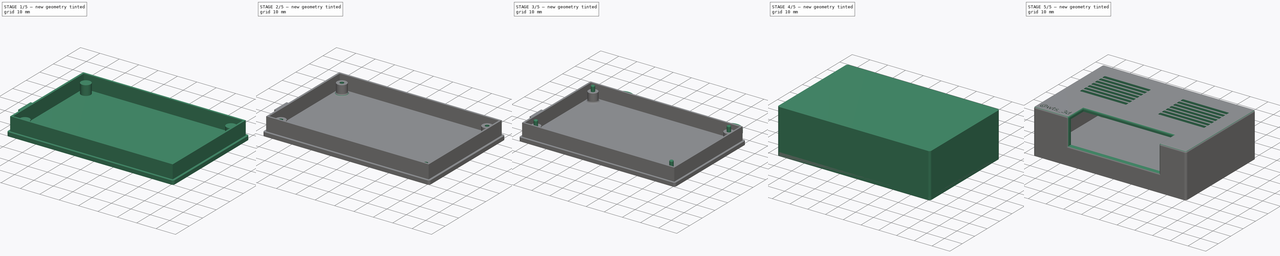
[diagram: build sequence overview — one tinted view per stage of 5, left to right]
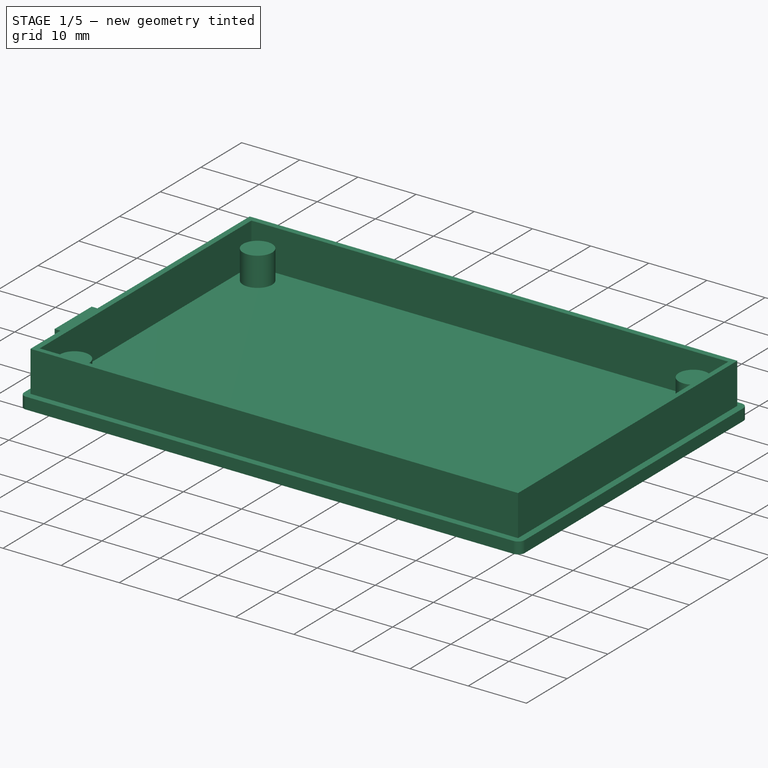
[diagram: stage 1 of 5 — iso view after this stage's code; geometry added in this stage tinted green]
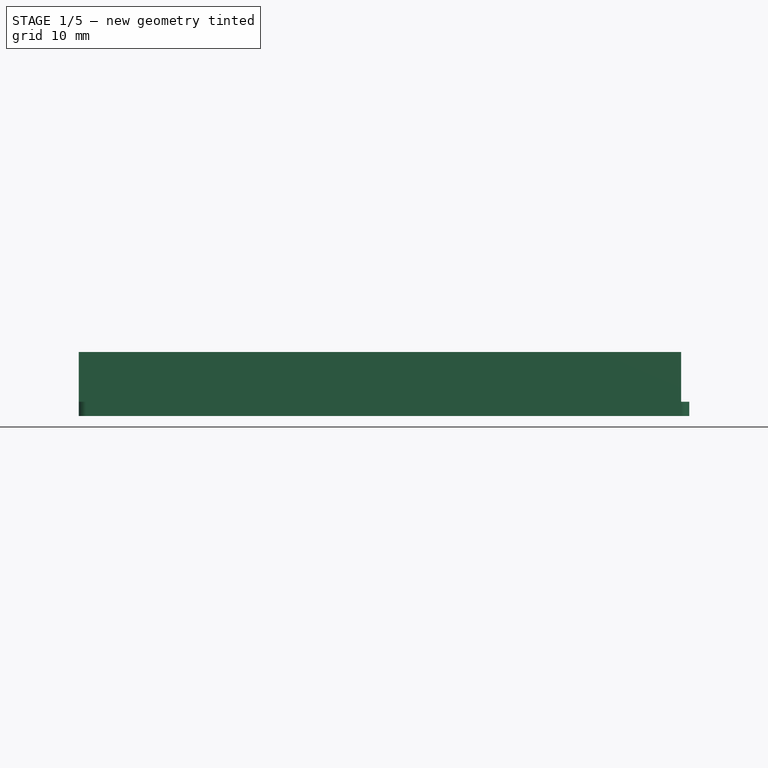
[diagram: stage 1 of 5 — front view after this stage's code; geometry added in this stage tinted green]
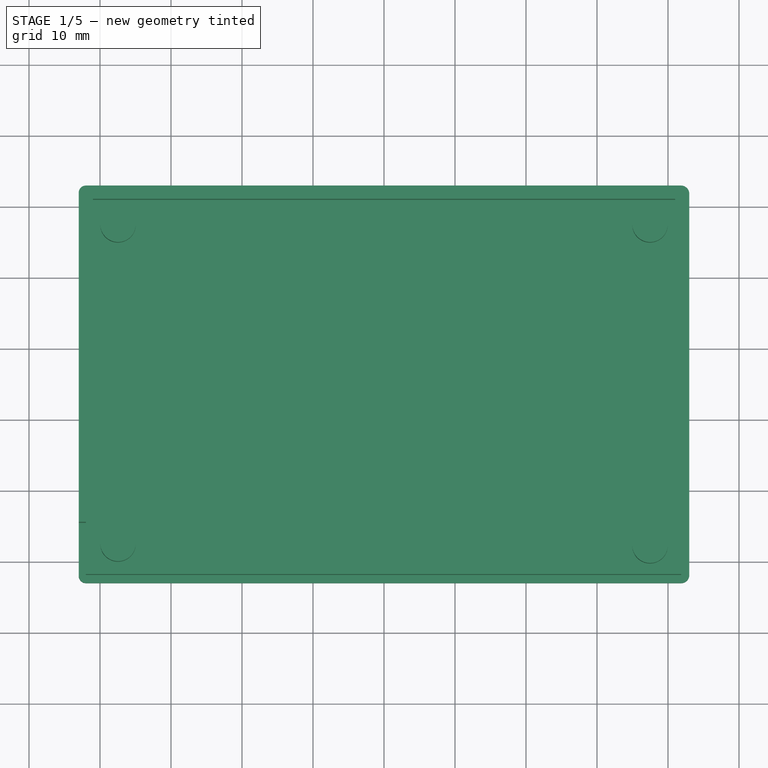
[diagram: stage 1 of 5 — top view after this stage's code; geometry added in this stage tinted green]
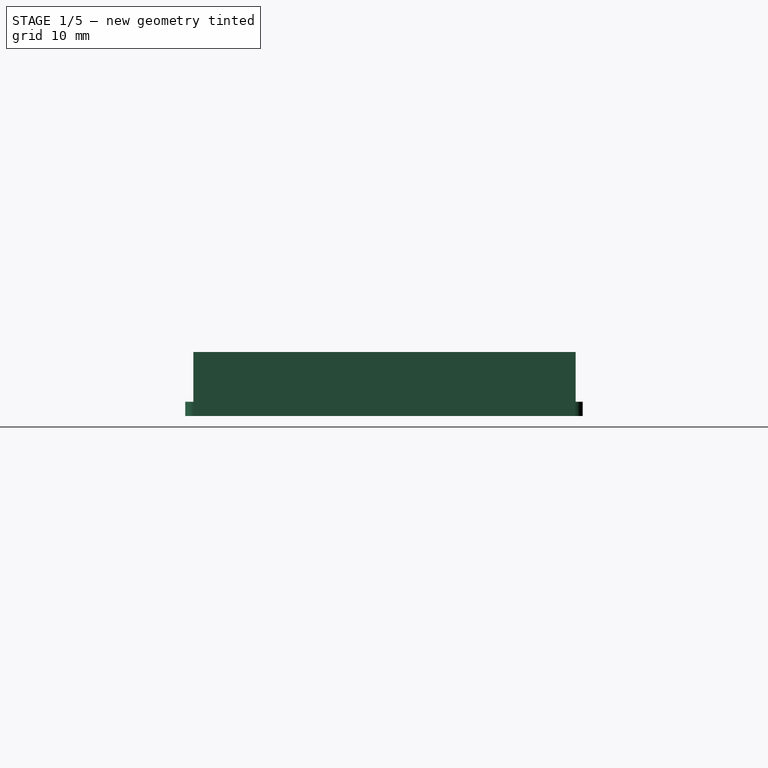
[diagram: stage 1 of 5 — right view after this stage's code; geometry added in this stage tinted green]
FCSTD DOCUMENT  (FreeCAD 1.0R38641 +468 (Git))
Label: 3d_home_assist_fan_case
License: All rights reserved
LicenseURL: https://en.wikipedia.org/wiki/All_rights_reserved
objects: Sketcher::SketchObject×19, PartDesign::Pad×14, PartDesign::Pocket×7, PartDesign::Fillet×3, PartDesign::Body×3, PartDesign::LinearPattern×2, Part::Part2DObjectPython×2, PartDesign::MultiTransform×1, PartDesign::Chamfer×1
note: 124 computed .brp shape members not serialized (recipe doc carries the construction recipe); baked Part::Feature solids carry a one-line shape summary decoded from their .brp

FEATURE [Sketcher::SketchObject] Sketch012  label="base sketch001"
  ArcFitTolerance = 1e-06
  AttachmentSupport = -> [XY_Plane044]
  FullyConstrained = false
  MakeInternals = false
  MapMode = 5
  sketch-geometry (60):
    g0: LineSegment [constr] StartX=-1 StartY=1 StartZ=0 EndX=-1 EndY=-51 EndZ=0
    g1: LineSegment [constr] StartX=-1 StartY=-51 StartZ=0 EndX=81 EndY=-51 EndZ=0
    g2: LineSegment [constr] StartX=81 StartY=-51 StartZ=0 EndX=81 EndY=1 EndZ=0
    g3: LineSegment [constr] StartX=81 StartY=1 StartZ=0 EndX=-1 EndY=1 EndZ=0
    g4: LineSegment [constr] StartX=0.0127 StartY=-0.0127 StartZ=0 EndX=0.0127 EndY=-49.9873 EndZ=0
    g5: LineSegment [constr] StartX=0.0127 StartY=-49.9873 StartZ=0 EndX=79.9873 EndY=-49.9873 EndZ=0
    g6: LineSegment [constr] StartX=79.9873 StartY=-49.9873 StartZ=0 EndX=79.9873 EndY=-0.0127 EndZ=0
    g7: LineSegment [constr] StartX=79.9873 StartY=-0.0127 StartZ=0 EndX=0.0127 EndY=-0.0127 EndZ=0
    g8: LineSegment [constr] StartX=-2 StartY=2 StartZ=0 EndX=-2 EndY=-52 EndZ=0
    g9: LineSegment [constr] StartX=-2 StartY=-52 StartZ=0 EndX=82 EndY=-52 EndZ=0
    g10: LineSegment [constr] StartX=82 StartY=-52 StartZ=0 EndX=82 EndY=2 EndZ=0
    g11: LineSegment [constr] StartX=82 StartY=2 StartZ=0 EndX=-2 EndY=2 EndZ=0
    g12: GeomPoint X=2.54001 Y=-2.54001 Z=0
    g13: GeomPoint X=77.4702 Y=-2.54001 Z=0
    g14: GeomPoint X=76.4542 Y=-2.54001 Z=0
    g15: GeomPoint X=3.55601 Y=-2.54001 Z=0
    g16: GeomPoint X=77.4702 Y=-47.7521 Z=0
    g17: GeomPoint X=76.4542 Y=-47.7521 Z=0
    g18: GeomPoint X=2.54001 Y=-47.4981 Z=0
    g19: GeomPoint X=3.55601 Y=-47.4981 Z=0
    g20: GeomPoint X=0.277038 Y=-35.5161 Z=0
    g21: GeomPoint X=0.277038 Y=-44.3161 Z=0
    g22: GeomPoint X=14.277 Y=-44.3161 Z=0
    g23: GeomPoint X=14.377 Y=-35.5161 Z=0
    g24: GeomPoint X=18.161 Y=-42.2501 Z=0
    g25: GeomPoint X=18.161 Y=-48.0501 Z=0
    g26: GeomPoint X=28.321 Y=-48.0501 Z=0
    g27: GeomPoint X=28.321 Y=-42.2501 Z=0
    g28: GeomPoint X=30.8611 Y=-42.2501 Z=0
    g29: GeomPoint X=30.8611 Y=-48.0501 Z=0
    g30: GeomPoint X=41.0211 Y=-48.0501 Z=0
    g31: GeomPoint X=41.0211 Y=-42.2501 Z=0
    g32: GeomPoint X=43.5611 Y=-42.2501 Z=0
    g33: GeomPoint X=43.5611 Y=-48.0501 Z=0
    g34: GeomPoint X=53.7211 Y=-48.0501 Z=0
    g35: GeomPoint X=53.7211 Y=-42.2501 Z=0
    g36: GeomPoint X=56.2611 Y=-42.2501 Z=0
    g37: GeomPoint X=56.2611 Y=-48.0501 Z=0
    g38: GeomPoint X=66.4211 Y=-48.0501 Z=0
    g39: GeomPoint X=66.4211 Y=-42.2501 Z=0
    g40: LineSegment StartX=-3 StartY=1.98579 StartZ=0 EndX=-3 EndY=-51.9696 EndZ=0
    g41: LineSegment StartX=-1.96959 StartY=-53 StartZ=0 EndX=81.8525 EndY=-53 EndZ=0
    g42: LineSegment StartX=83 StartY=-51.8525 StartZ=0 EndX=83 EndY=1.83683 EndZ=0
    g43: LineSegment StartX=81.8368 StartY=3 StartZ=0 EndX=-1.98579 EndY=3 EndZ=0
    g44: GeomPoint X=-2 Y=2 Z=0
    g45: GeomPoint X=-1 Y=1 Z=0
    g46: GeomPoint X=82 Y=2 Z=0
    g47: GeomPoint X=81 Y=1 Z=0
    g48: GeomPoint X=81 Y=-51 Z=0
    g49: GeomPoint X=82 Y=-52 Z=0
    g50: GeomPoint X=-1 Y=-51 Z=0
    g51: GeomPoint X=-2 Y=-52 Z=0
    g52: ArcOfCircle CenterX=-1.98579 CenterY=1.98579 CenterZ=0 NormalX=0 NormalY=0 NormalZ=1 AngleXU=0 Radius=1.01421 StartAngle=1.5708 EndAngle=3.14159
    g53: GeomPoint [constr] X=-3 Y=3 Z=0
    g54: ArcOfCircle CenterX=81.8368 CenterY=1.83683 CenterZ=0 NormalX=0 NormalY=0 NormalZ=1 AngleXU=0 Radius=1.16317 StartAngle=0 EndAngle=1.5708
    g55: GeomPoint [constr] X=83 Y=3 Z=0
    g56: ArcOfCircle CenterX=81.8525 CenterY=-51.8525 CenterZ=0 NormalX=0 NormalY=0 NormalZ=1 AngleXU=0 Radius=1.14755 StartAngle=4.71239 EndAngle=6.28319
    g57: GeomPoint [constr] X=83 Y=-53 Z=0
    g58: ArcOfCircle CenterX=-1.96959 CenterY=-51.9696 CenterZ=0 NormalX=0 NormalY=0 NormalZ=1 AngleXU=0 Radius=1.03041 StartAngle=3.14159 EndAngle=4.71239
    g59: GeomPoint [constr] X=-3 Y=-53 Z=0
  constraints (96):
    c: DistanceX(g-4,g-4) = 79.9746
    c: DistanceY(g-3,g-3) = 49.9746
    c: Coincident(g0,g1)
    c: Coincident(g1,g2)
    c: Coincident(g2,g3)
    c: Coincident(g3,g0)
    c: Vertical(g0)
    c: Vertical(g2)
    c: Horizontal(g1)
    c: Horizontal(g3)
    c: DistanceX(g1,g1) = 82
    c: DistanceY(g2,g2) = 52
    c: Distance(g3,g-1) = 1
    c: Distance(g-2,g0) = 1
    c: Coincident(g4,g5)
    c: Coincident(g5,g6)
    c: Coincident(g6,g7)
    c: Coincident(g7,g4)
    c: Vertical(g4)
    c: Vertical(g6)
    c: Horizontal(g5)
    c: Horizontal(g7)
    c: Coincident(g4,g-4)
    c: Coincident(g5,g-10)
    c: Coincident(g8,g9)
    c: Coincident(g9,g10)
    c: Coincident(g10,g11)
    c: Coincident(g11,g8)
    c: Vertical(g8)
    c: Vertical(g10)
    c: Horizontal(g9)
    c: Horizontal(g11)
    c: Distance(g10,g2) = 1
    c: Distance(g9,g1) = 1
    c: DistanceX(g11,g11) = 84
    c: DistanceY(g8,g8) = 54
    c: Coincident(g12,g-6)
    c: Coincident(g13,g-8)
    c: Coincident(g14,g-8)
    c: Coincident(g15,g-6)
    c: Coincident(g16,g-12)
    c: Coincident(g17,g-12)
    c: Coincident(g18,g-11)
    c: Coincident(g19,g-11)
    c: Coincident(g20,g-18)
    c: Coincident(g21,g-13)
    c: Coincident(g22,g-15)
    c: Coincident(g23,g-16)
    c: Coincident(g24,g-19)
    c: Coincident(g25,g-21)
    c: Coincident(g26,g-21)
    c: Coincident(g27,g-20)
    c: Coincident(g28,g-23)
    c: Coincident(g29,g-23)
    c: Coincident(g30,g-24)
    c: Coincident(g31,g-24)
    c: Coincident(g32,g-25)
    c: Coincident(g33,g-26)
    c: Coincident(g34,g-27)
    c: Coincident(g35,g-27)
    c: Coincident(g36,g-28)
    c: Coincident(g37,g-29)
    c: Coincident(g38,g-30)
    c: Coincident(g39,g-30)
    c: Vertical(g40)
    c: Vertical(g42)
    c: Horizontal(g41)
    c: Horizontal(g43)
    c: Distance(g57,g10) = 1
    c: Distance(g55,g11) = 1
    c: DistanceY(g59,g53) = 56
    c: DistanceX(g59,g57) = 86
    c: Coincident(g44,g8)
    c: Coincident(g45,g0)
    c: Coincident(g46,g10)
    c: Coincident(g47,g2)
    c: Coincident(g48,g1)
    c: Coincident(g49,g9)
    c: Coincident(g50,g0)
    c: Coincident(g51,g8)
    c: PointOnObject(g53,g40)
    c: PointOnObject(g53,g43)
    c: Tangent(g40,g52) = -1.5708
    c: Tangent(g43,g52) = -1.5708
    c: PointOnObject(g55,g42)
    c: PointOnObject(g55,g43)
    c: Tangent(g42,g54) = -1.5708
    c: Tangent(g43,g54) = -1.5708
    c: PointOnObject(g57,g41)
    c: PointOnObject(g57,g42)
    c: Tangent(g41,g56) = -1.5708
    c: Tangent(g42,g56) = -1.5708
    c: PointOnObject(g59,g40)
    c: PointOnObject(g59,g41)
    c: Tangent(g40,g58) = -1.5708
    c: Tangent(g41,g58) = -1.5708
FEATURE [PartDesign::Pad] Pad007  label="base Pad001"
  Direction = (0,0,1)
  Length = 2
  Length2 = 10
  Profile = -> Sketch012
  ReferenceAxis = -> Sketch012 [N_Axis]
  Refine = true
  Suppressed = false
  Type = 0
FEATURE [Sketcher::SketchObject] Sketch013
  ArcFitTolerance = 1e-06
  AttachmentSupport = -> [XY_Plane044]
  FullyConstrained = false
  MakeInternals = false
  MapMode = 5
  sketch-geometry (62):
    g0: LineSegment [constr] StartX=-3 StartY=3 StartZ=0 EndX=-3 EndY=26.4756 EndZ=0
    g1: LineSegment [constr] StartX=6.01838 StartY=9.02488 StartZ=0 EndX=6.01838 EndY=-2.53263 EndZ=0
    g2: LineSegment [constr] StartX=-1 StartY=1 StartZ=0 EndX=-1 EndY=-51 EndZ=0
    g3: LineSegment [constr] StartX=-1 StartY=-51 StartZ=0 EndX=81 EndY=-51 EndZ=0
    g4: LineSegment [constr] StartX=81 StartY=-51 StartZ=0 EndX=81 EndY=1 EndZ=0
    g5: LineSegment [constr] StartX=81 StartY=1 StartZ=0 EndX=-1 EndY=1 EndZ=0
    g6: LineSegment [constr] StartX=0.0127 StartY=-0.0127 StartZ=0 EndX=0.0127 EndY=-49.9873 EndZ=0
    g7: LineSegment [constr] StartX=0.0127 StartY=-49.9873 StartZ=0 EndX=79.9873 EndY=-49.9873 EndZ=0
    g8: LineSegment [constr] StartX=79.9873 StartY=-49.9873 StartZ=0 EndX=79.9873 EndY=-0.0127 EndZ=0
    g9: LineSegment [constr] StartX=79.9873 StartY=-0.0127 StartZ=0 EndX=0.0127 EndY=-0.0127 EndZ=0
    g10: LineSegment [constr] StartX=-2 StartY=2 StartZ=0 EndX=-2 EndY=-52 EndZ=0
    g11: LineSegment [constr] StartX=-2 StartY=-52 StartZ=0 EndX=82 EndY=-52 EndZ=0
    g12: LineSegment [constr] StartX=82 StartY=-52 StartZ=0 EndX=82 EndY=2 EndZ=0
    g13: LineSegment [constr] StartX=82 StartY=2 StartZ=0 EndX=-2 EndY=2 EndZ=0
    g14: GeomPoint X=2.54 Y=-2.54 Z=0
    g15: GeomPoint X=77.4702 Y=-2.54 Z=0
    g16: GeomPoint X=76.4542 Y=-2.54 Z=0
    g17: GeomPoint X=3.55601 Y=-2.54 Z=0
    g18: GeomPoint X=77.4702 Y=-47.7521 Z=0
    g19: GeomPoint X=76.4542 Y=-47.7521 Z=0
    g20: GeomPoint X=2.54 Y=-47.4981 Z=0
    g21: GeomPoint X=3.55601 Y=-47.4981 Z=0
    g22: GeomPoint X=0.277038 Y=-35.5161 Z=0
    g23: GeomPoint X=0.277038 Y=-44.3161 Z=0
    g24: GeomPoint X=14.277 Y=-44.3161 Z=0
    g25: GeomPoint X=14.377 Y=-35.5161 Z=0
    g26: GeomPoint X=18.161 Y=-42.2501 Z=0
    g27: GeomPoint X=18.161 Y=-48.0501 Z=0
    g28: GeomPoint X=28.321 Y=-48.0501 Z=0
    g29: GeomPoint X=28.321 Y=-42.2501 Z=0
    g30: GeomPoint X=30.8611 Y=-42.2501 Z=0
    g31: GeomPoint X=30.8611 Y=-48.0501 Z=0
    g32: GeomPoint X=41.0211 Y=-48.0501 Z=0
    g33: GeomPoint X=41.0211 Y=-42.2501 Z=0
    g34: GeomPoint X=43.5611 Y=-42.2501 Z=0
    g35: GeomPoint X=43.5611 Y=-48.0501 Z=0
    g36: GeomPoint X=53.7211 Y=-48.0501 Z=0
    g37: GeomPoint X=53.7211 Y=-42.2501 Z=0
    g38: GeomPoint X=56.2611 Y=-42.2501 Z=0
    g39: GeomPoint X=56.2611 Y=-48.0501 Z=0
    g40: GeomPoint X=66.4211 Y=-48.0501 Z=0
    g41: GeomPoint X=66.4211 Y=-42.2501 Z=0
    g42: LineSegment StartX=-3 StartY=1.98579 StartZ=0 EndX=-3 EndY=-51.9696 EndZ=0
    g43: LineSegment StartX=-1.96959 StartY=-53 StartZ=0 EndX=81.8525 EndY=-53 EndZ=0
    g44: LineSegment StartX=83 StartY=-51.8525 StartZ=0 EndX=83 EndY=1.83683 EndZ=0
    g45: LineSegment StartX=81.8368 StartY=3 StartZ=0 EndX=-1.98579 EndY=3 EndZ=0
    g46: GeomPoint X=-2 Y=2 Z=0
    g47: GeomPoint X=-1 Y=1 Z=0
    g48: GeomPoint X=82 Y=2 Z=0
    g49: GeomPoint X=81 Y=1 Z=0
    g50: GeomPoint X=81 Y=-51 Z=0
    g51: GeomPoint X=82 Y=-52 Z=0
    g52: GeomPoint X=-1 Y=-51 Z=0
    g53: GeomPoint X=-2 Y=-52 Z=0
    g54: ArcOfCircle CenterX=-1.98579 CenterY=1.98579 CenterZ=0 NormalX=0 NormalY=0 NormalZ=1 AngleXU=0 Radius=1.01421 StartAngle=1.5708 EndAngle=3.14159
    g55: GeomPoint [constr] X=-3 Y=3 Z=0
    g56: ArcOfCircle CenterX=81.8368 CenterY=1.83683 CenterZ=0 NormalX=0 NormalY=0 NormalZ=1 AngleXU=0 Radius=1.16317 StartAngle=0 EndAngle=1.5708
    g57: GeomPoint [constr] X=83 Y=3 Z=0
    g58: ArcOfCircle CenterX=81.8525 CenterY=-51.8525 CenterZ=0 NormalX=0 NormalY=0 NormalZ=1 AngleXU=0 Radius=1.14754 StartAngle=4.71239 EndAngle=6.28319
    g59: GeomPoint [constr] X=83 Y=-53 Z=0
    g60: ArcOfCircle CenterX=-1.96959 CenterY=-51.9696 CenterZ=0 NormalX=0 NormalY=0 NormalZ=1 AngleXU=0 Radius=1.03041 StartAngle=3.14159 EndAngle=4.71239
    g61: GeomPoint [constr] X=-3 Y=-53 Z=0
  constraints (66):
    c: Coincident(g0,g-4)
    c: Vertical(g0)
    c: Coincident(g2,g3)
    c: Coincident(g3,g4)
    c: Coincident(g4,g5)
    c: Coincident(g5,g2)
    c: Vertical(g2)
    c: Vertical(g4)
    c: Horizontal(g3)
    c: Horizontal(g5)
    c: DistanceX(g3,g3) = 82
    c: DistanceY(g4,g4) = 52
    c: Distance(g5,g-1) = 1
    c: Distance(g-2,g2) = 1
    c: Coincident(g6,g7)
    c: Coincident(g7,g8)
    c: Coincident(g8,g9)
    c: Coincident(g9,g6)
    c: Vertical(g6)
    c: Vertical(g8)
    c: Horizontal(g7)
    c: Horizontal(g9)
    c: Coincident(g10,g11)
    c: Coincident(g11,g12)
    c: Coincident(g12,g13)
    c: Coincident(g13,g10)
    c: Vertical(g10)
    c: Vertical(g12)
    c: Horizontal(g11)
    c: Horizontal(g13)
    c: Distance(g12,g4) = 1
    c: Distance(g11,g3) = 1
    c: DistanceX(g13,g13) = 84
    c: DistanceY(g10,g10) = 54
    c: Vertical(g42)
    c: Vertical(g44)
    c: Horizontal(g43)
    c: Horizontal(g45)
    c: Distance(g59,g12) = 1
    c: Distance(g57,g13) = 1
    c: DistanceY(g61,g55) = 56
    c: DistanceX(g61,g59) = 86
    c: Coincident(g46,g10)
    c: Coincident(g47,g2)
    c: Coincident(g48,g12)
    c: Coincident(g49,g4)
    c: Coincident(g50,g3)
    c: Coincident(g51,g11)
    c: Coincident(g52,g2)
    c: Coincident(g53,g10)
    c: PointOnObject(g55,g42)
    c: PointOnObject(g55,g45)
    c: Tangent(g42,g54) = -1.5708
    c: Tangent(g45,g54) = -1.5708
    c: PointOnObject(g57,g44)
    c: PointOnObject(g57,g45)
    c: Tangent(g44,g56) = -1.5708
    c: Tangent(g45,g56) = -1.5708
    c: PointOnObject(g59,g43)
    c: PointOnObject(g59,g44)
    c: Tangent(g43,g58) = -1.5708
    c: Tangent(g44,g58) = -1.5708
    c: PointOnObject(g61,g42)
    c: PointOnObject(g61,g43)
    c: Tangent(g42,g60) = -1.5708
    c: Tangent(g43,g60) = -1.5708
FEATURE [PartDesign::Pad] Pad008  label="ear_pad001"
  BaseFeature = -> Pad007
  Direction = (0,0,1)
  Length = 2
  Length2 = 10
  Profile = -> Sketch013
  ReferenceAxis = -> Sketch013 [N_Axis]
  Refine = true
  Suppressed = false
  Type = 0
FEATURE [Sketcher::SketchObject] Sketch014
  ArcFitTolerance = 1e-06
  AttachmentSupport = -> [Pad008]
  FullyConstrained = false
  MakeInternals = false
  MapMode = 5
  Placement = pos=(0,0,2) rot=(0,0,1;0rad)
  sketch-geometry (60):
    g0: LineSegment [constr] StartX=-1 StartY=1 StartZ=0 EndX=-1 EndY=-51 EndZ=0
    g1: LineSegment [constr] StartX=-1 StartY=-51 StartZ=0 EndX=81 EndY=-51 EndZ=0
    g2: LineSegment [constr] StartX=81 StartY=-51 StartZ=0 EndX=81 EndY=1 EndZ=0
    g3: LineSegment [constr] StartX=81 StartY=1 StartZ=0 EndX=-1 EndY=1 EndZ=0
    g4: LineSegment [constr] StartX=0.0127 StartY=-0.0127 StartZ=0 EndX=0.0127 EndY=-49.9873 EndZ=0
    g5: LineSegment [constr] StartX=0.0127 StartY=-49.9873 StartZ=0 EndX=79.9873 EndY=-49.9873 EndZ=0
    g6: LineSegment [constr] StartX=79.9873 StartY=-49.9873 StartZ=0 EndX=79.9873 EndY=-0.0127 EndZ=0
    g7: LineSegment [constr] StartX=79.9873 StartY=-0.0127 StartZ=0 EndX=0.0127 EndY=-0.0127 EndZ=0
    g8: LineSegment [constr] StartX=-2 StartY=2 StartZ=0 EndX=-2 EndY=-52 EndZ=0
    g9: LineSegment [constr] StartX=-2 StartY=-52 StartZ=0 EndX=82 EndY=-52 EndZ=0
    g10: LineSegment [constr] StartX=82 StartY=-52 StartZ=0 EndX=82 EndY=2 EndZ=0
    g11: LineSegment [constr] StartX=82 StartY=2 StartZ=0 EndX=-2 EndY=2 EndZ=0
    g12: GeomPoint X=2.54 Y=-2.54 Z=0
    g13: GeomPoint X=77.4702 Y=-2.54 Z=0
    g14: GeomPoint X=76.4542 Y=-2.54 Z=0
    g15: GeomPoint X=3.55601 Y=-2.54 Z=0
    g16: GeomPoint X=77.4702 Y=-47.7521 Z=0
    g17: GeomPoint X=76.4542 Y=-47.7521 Z=0
    g18: GeomPoint X=2.54 Y=-47.4981 Z=0
    g19: GeomPoint X=3.55601 Y=-47.4981 Z=0
    g20: GeomPoint X=0.277038 Y=-35.5161 Z=0
    g21: GeomPoint X=0.277038 Y=-44.3161 Z=0
    g22: GeomPoint X=14.277 Y=-44.3161 Z=0
    g23: GeomPoint X=14.377 Y=-35.5161 Z=0
    g24: GeomPoint X=18.161 Y=-42.2501 Z=0
    g25: GeomPoint X=18.161 Y=-48.0501 Z=0
    g26: GeomPoint X=28.321 Y=-48.0501 Z=0
    g27: GeomPoint X=28.321 Y=-42.2501 Z=0
    g28: GeomPoint X=30.8611 Y=-42.2501 Z=0
    g29: GeomPoint X=30.8611 Y=-48.0501 Z=0
    g30: GeomPoint X=41.0211 Y=-48.0501 Z=0
    g31: GeomPoint X=41.0211 Y=-42.2501 Z=0
    g32: GeomPoint X=43.5611 Y=-42.2501 Z=0
    g33: GeomPoint X=43.5611 Y=-48.0501 Z=0
    g34: GeomPoint X=53.7211 Y=-48.0501 Z=0
    g35: GeomPoint X=53.7211 Y=-42.2501 Z=0
    g36: GeomPoint X=56.2611 Y=-42.2501 Z=0
    g37: GeomPoint X=56.2611 Y=-48.0501 Z=0
    g38: GeomPoint X=66.4211 Y=-48.0501 Z=0
    g39: GeomPoint X=66.4211 Y=-42.2501 Z=0
    g40: GeomPoint X=-2 Y=2 Z=0
    g41: GeomPoint X=-1 Y=1 Z=0
    g42: GeomPoint X=82 Y=2 Z=0
    g43: GeomPoint X=81 Y=1 Z=0
    g44: GeomPoint X=81 Y=-51 Z=0
    g45: GeomPoint X=82 Y=-52 Z=0
    g46: GeomPoint X=-1 Y=-51 Z=0
    g47: GeomPoint X=-2 Y=-52 Z=0
    g48: GeomPoint [constr] X=-3 Y=3 Z=0
    g49: GeomPoint [constr] X=83 Y=3 Z=0
    g50: GeomPoint [constr] X=83 Y=-53 Z=0
    g51: GeomPoint [constr] X=-3 Y=-53 Z=0
    g52: LineSegment StartX=-1.98579 StartY=1.98579 StartZ=0 EndX=-1.98579 EndY=-51.8525 EndZ=0
    g53: LineSegment StartX=-1.98579 StartY=-51.8525 StartZ=0 EndX=81.8525 EndY=-51.8525 EndZ=0
    g54: LineSegment StartX=81.8525 StartY=-51.8525 StartZ=0 EndX=81.8525 EndY=1.98579 EndZ=0
    g55: LineSegment StartX=81.8525 StartY=1.98579 StartZ=0 EndX=-1.98579 EndY=1.98579 EndZ=0
    g56: LineSegment StartX=81 StartY=-51 StartZ=0 EndX=81 EndY=1 EndZ=0
    g57: LineSegment StartX=81 StartY=1 StartZ=0 EndX=-1 EndY=1 EndZ=0
    g58: LineSegment StartX=-1 StartY=1 StartZ=0 EndX=-1 EndY=-51 EndZ=0
    g59: LineSegment StartX=-1 StartY=-51 StartZ=0 EndX=81 EndY=-51 EndZ=0
  constraints (62):
    c: Coincident(g0,g1)
    c: Coincident(g1,g2)
    c: Coincident(g2,g3)
    c: Coincident(g3,g0)
    c: Vertical(g0)
    c: Vertical(g2)
    c: Horizontal(g1)
    c: Horizontal(g3)
    c: DistanceX(g1,g1) = 82
    c: DistanceY(g2,g2) = 52
    c: Distance(g3,g-1) = 1
    c: Distance(g-2,g0) = 1
    c: Coincident(g4,g5)
    c: Coincident(g5,g6)
    c: Coincident(g6,g7)
    c: Coincident(g7,g4)
    c: Vertical(g4)
    c: Vertical(g6)
    c: Horizontal(g5)
    c: Horizontal(g7)
    c: Coincident(g8,g9)
    c: Coincident(g9,g10)
    c: Coincident(g10,g11)
    c: Coincident(g11,g8)
    c: Vertical(g8)
    c: Vertical(g10)
    c: Horizontal(g9)
    c: Horizontal(g11)
    c: Distance(g10,g2) = 1
    c: Distance(g9,g1) = 1
    c: DistanceX(g11,g11) = 84
    c: DistanceY(g8,g8) = 54
    c: Distance(g50,g10) = 1
    c: Distance(g49,g11) = 1
    c: DistanceY(g51,g48) = 56
    c: DistanceX(g51,g50) = 86
    c: Coincident(g40,g8)
    c: Coincident(g41,g0)
    c: Coincident(g42,g10)
    c: Coincident(g43,g2)
    c: Coincident(g44,g1)
    c: Coincident(g45,g9)
    c: Coincident(g46,g0)
    c: Coincident(g47,g8)
    c: Coincident(g52,g53)
    c: Coincident(g53,g54)
    c: Coincident(g54,g55)
    c: Coincident(g55,g52)
    c: Vertical(g52)
    c: Vertical(g54)
    c: Horizontal(g53)
    c: Horizontal(g55)
    c: Coincident(g56,g57)
    c: Coincident(g57,g58)
    c: Coincident(g58,g59)
    c: Coincident(g59,g56)
    c: Vertical(g56)
    c: Vertical(g58)
    c: Horizontal(g57)
    c: Horizontal(g59)
    c: Coincident(g56,g1)
    c: Coincident(g57,g0)
FEATURE [PartDesign::Pad] Pad009
  BaseFeature = -> Pad008
  Direction = (0,0,1)
  Length = 7
  Length2 = 10
  Profile = -> Sketch014
  ReferenceAxis = -> Sketch014 [N_Axis]
  Refine = true
  Suppressed = false
  Type = 0
FEATURE [Sketcher::SketchObject] Sketch015
  ArcFitTolerance = 1e-06
  AttachmentSupport = -> [Pad007]
  FullyConstrained = false
  MakeInternals = false
  MapMode = 5
  Placement = pos=(0,0,2) rot=(0,0,1;0rad)
  sketch-geometry (60):
    g0: LineSegment [constr] StartX=-1 StartY=1 StartZ=0 EndX=-1 EndY=-51 EndZ=0
    g1: LineSegment [constr] StartX=-1 StartY=-51 StartZ=0 EndX=81 EndY=-51 EndZ=0
    g2: LineSegment [constr] StartX=81 StartY=-51 StartZ=0 EndX=81 EndY=1 EndZ=0
    g3: LineSegment [constr] StartX=81 StartY=1 StartZ=0 EndX=-1 EndY=1 EndZ=0
    g4: LineSegment [constr] StartX=0.0127 StartY=-0.0127 StartZ=0 EndX=0.0127 EndY=-49.9873 EndZ=0
    g5: LineSegment [constr] StartX=0.0127 StartY=-49.9873 StartZ=0 EndX=79.9873 EndY=-49.9873 EndZ=0
    g6: LineSegment [constr] StartX=79.9873 StartY=-49.9873 StartZ=0 EndX=79.9873 EndY=-0.0127 EndZ=0
    g7: LineSegment [constr] StartX=79.9873 StartY=-0.0127 StartZ=0 EndX=0.0127 EndY=-0.0127 EndZ=0
    g8: LineSegment [constr] StartX=-2 StartY=2 StartZ=0 EndX=-2 EndY=-52 EndZ=0
    g9: LineSegment [constr] StartX=-2 StartY=-52 StartZ=0 EndX=82 EndY=-52 EndZ=0
    g10: LineSegment [constr] StartX=82 StartY=-52 StartZ=0 EndX=82 EndY=2 EndZ=0
    g11: LineSegment [constr] StartX=82 StartY=2 StartZ=0 EndX=-2 EndY=2 EndZ=0
    g12: GeomPoint X=2.54 Y=-2.54 Z=0
    g13: GeomPoint X=77.4702 Y=-2.54 Z=0
    g14: GeomPoint X=76.4542 Y=-2.54 Z=0
    g15: GeomPoint X=3.55601 Y=-2.54 Z=0
    g16: GeomPoint X=77.4702 Y=-47.7521 Z=0
    g17: GeomPoint X=76.4542 Y=-47.7521 Z=0
    g18: GeomPoint X=2.54 Y=-47.4981 Z=0
    g19: GeomPoint X=3.55601 Y=-47.4981 Z=0
    g20: GeomPoint X=0.277038 Y=-35.5161 Z=0
    g21: GeomPoint X=0.277038 Y=-44.3161 Z=0
    g22: GeomPoint X=14.277 Y=-44.3161 Z=0
    g23: GeomPoint X=14.377 Y=-35.5161 Z=0
    g24: GeomPoint X=18.161 Y=-42.2501 Z=0
    g25: GeomPoint X=18.161 Y=-48.0501 Z=0
    g26: GeomPoint X=28.321 Y=-48.0501 Z=0
    g27: GeomPoint X=28.321 Y=-42.2501 Z=0
    g28: GeomPoint X=30.8611 Y=-42.2501 Z=0
    g29: GeomPoint X=30.8611 Y=-48.0501 Z=0
    g30: GeomPoint X=41.0211 Y=-48.0501 Z=0
    g31: GeomPoint X=41.0211 Y=-42.2501 Z=0
    g32: GeomPoint X=43.5611 Y=-42.2501 Z=0
    g33: GeomPoint X=43.5611 Y=-48.0501 Z=0
    g34: GeomPoint X=53.7211 Y=-48.0501 Z=0
    g35: GeomPoint X=53.7211 Y=-42.2501 Z=0
    g36: GeomPoint X=56.2611 Y=-42.2501 Z=0
    g37: GeomPoint X=56.2611 Y=-48.0501 Z=0
    g38: GeomPoint X=66.4211 Y=-48.0501 Z=0
    g39: GeomPoint X=66.4211 Y=-42.2501 Z=0
    g40: GeomPoint X=-2 Y=2 Z=0
    g41: GeomPoint X=-1 Y=1 Z=0
    g42: GeomPoint X=82 Y=2 Z=0
    g43: GeomPoint X=81 Y=1 Z=0
    g44: GeomPoint X=81 Y=-51 Z=0
    g45: GeomPoint X=82 Y=-52 Z=0
    g46: GeomPoint X=-1 Y=-51 Z=0
    g47: GeomPoint X=-2 Y=-52 Z=0
    g48: GeomPoint [constr] X=-3 Y=3 Z=0
    g49: GeomPoint [constr] X=83 Y=3 Z=0
    g50: GeomPoint [constr] X=83 Y=-53 Z=0
    g51: GeomPoint [constr] X=-3 Y=-53 Z=0
    g52: Circle [constr] CenterX=2.54 CenterY=-2.54 CenterZ=0 NormalX=0 NormalY=0 NormalZ=1 AngleXU=0 Radius=1.016
    g53: Circle [constr] CenterX=77.4702 CenterY=-2.54 CenterZ=0 NormalX=0 NormalY=0 NormalZ=1 AngleXU=0 Radius=1.016
    g54: Circle [constr] CenterX=77.4702 CenterY=-47.7521 CenterZ=0 NormalX=0 NormalY=0 NormalZ=1 AngleXU=0 Radius=1.016
    g55: Circle [constr] CenterX=2.54 CenterY=-47.4981 CenterZ=0 NormalX=0 NormalY=0 NormalZ=1 AngleXU=0 Radius=1.016
    g56: Circle CenterX=2.54 CenterY=-47.4981 CenterZ=0 NormalX=0 NormalY=0 NormalZ=1 AngleXU=0 Radius=2.5
    g57: Circle CenterX=2.54 CenterY=-2.54 CenterZ=0 NormalX=0 NormalY=0 NormalZ=1 AngleXU=0 Radius=2.5
    g58: Circle CenterX=77.4702 CenterY=-2.54 CenterZ=0 NormalX=0 NormalY=0 NormalZ=1 AngleXU=0 Radius=2.5
    g59: Circle CenterX=77.4702 CenterY=-47.7521 CenterZ=0 NormalX=0 NormalY=0 NormalZ=1 AngleXU=0 Radius=2.5
  constraints (60):
    c: Coincident(g0,g1)
    c: Coincident(g1,g2)
    c: Coincident(g2,g3)
    c: Coincident(g3,g0)
    c: Vertical(g0)
    c: Vertical(g2)
    c: Horizontal(g1)
    c: Horizontal(g3)
    c: DistanceX(g1,g1) = 82
    c: DistanceY(g2,g2) = 52
    c: Distance(g3,g-1) = 1
    c: Distance(g-2,g0) = 1
    c: Coincident(g4,g5)
    c: Coincident(g5,g6)
    c: Coincident(g6,g7)
    c: Coincident(g7,g4)
    c: Vertical(g4)
    c: Vertical(g6)
    c: Horizontal(g5)
    c: Horizontal(g7)
    c: Coincident(g8,g9)
    c: Coincident(g9,g10)
    c: Coincident(g10,g11)
    c: Coincident(g11,g8)
    c: Vertical(g8)
    c: Vertical(g10)
    c: Horizontal(g9)
    c: Horizontal(g11)
    c: Distance(g10,g2) = 1
    c: Distance(g9,g1) = 1
    c: DistanceX(g11,g11) = 84
    c: DistanceY(g8,g8) = 54
    c: Distance(g50,g10) = 1
    c: Distance(g49,g11) = 1
    c: DistanceY(g51,g48) = 56
    c: DistanceX(g51,g50) = 86
    c: Coincident(g40,g8)
    c: Coincident(g41,g0)
    c: Coincident(g42,g10)
    c: Coincident(g43,g2)
    c: Coincident(g44,g1)
    c: Coincident(g45,g9)
    c: Coincident(g46,g0)
    c: Coincident(g47,g8)
    c: Coincident(g52,g12)
    c: PointOnObject(g15,g52)
    c: Coincident(g53,g13)
    c: PointOnObject(g14,g53)
    c: Coincident(g54,g16)
    c: PointOnObject(g17,g54)
    c: Coincident(g55,g18)
    c: PointOnObject(g19,g55)
    c: Diameter(g56) = 5
    c: Coincident(g56,g18)
    c: Diameter(g57) = 5
    c: Coincident(g57,g12)
    c: Diameter(g58) = 5
    c: Coincident(g58,g13)
    c: Diameter(g59) = 5
    c: Coincident(g59,g16)
FEATURE [PartDesign::Pad] Pad010
  BaseFeature = -> Pad009
  Direction = (0,0,1)
  Length = 5
  Length2 = 10
  Profile = -> Sketch015
  ReferenceAxis = -> Sketch015 [N_Axis]
  Refine = true
  Suppressed = false
  Type = 0
FEATURE [Sketcher::SketchObject] Sketch016
  ArcFitTolerance = 1e-06
  AttachmentSupport = -> [Pad010]
  ExternalGeometry = -> [Pad010]
  FullyConstrained = false
  MakeInternals = false
  MapMode = 5
  Placement = pos=(-1.98579,0,0) rot=(0.57735,-0.57735,-0.57735;2.0944rad)
  sketch-geometry (4):
    g0: LineSegment StartX=35.3983 StartY=9 StartZ=0 EndX=35.3983 EndY=2 EndZ=0
    g1: LineSegment StartX=35.3983 StartY=2 StartZ=0 EndX=44.4978 EndY=2 EndZ=0
    g2: LineSegment StartX=44.4978 StartY=2 StartZ=0 EndX=44.4978 EndY=9 EndZ=0
    g3: LineSegment StartX=44.4978 StartY=9 StartZ=0 EndX=35.3983 EndY=9 EndZ=0
  constraints (10):
    c: Coincident(g0,g1)
    c: Coincident(g1,g2)
    c: Coincident(g2,g3)
    c: Coincident(g3,g0)
    c: Vertical(g0)
    c: Vertical(g2)
    c: Horizontal(g1)
    c: Horizontal(g3)
    c: PointOnObject(g0,g-3)
    c: PointOnObject(g1,g-4)
FEATURE [PartDesign::Pad] Pad011
  BaseFeature = -> Pad010
  Direction = (-1,0,0)
  Length = 1
  Length2 = 10
  Profile = -> Sketch016
  ReferenceAxis = -> Sketch016 [N_Axis]
  Refine = true
  Suppressed = false
  Type = 0
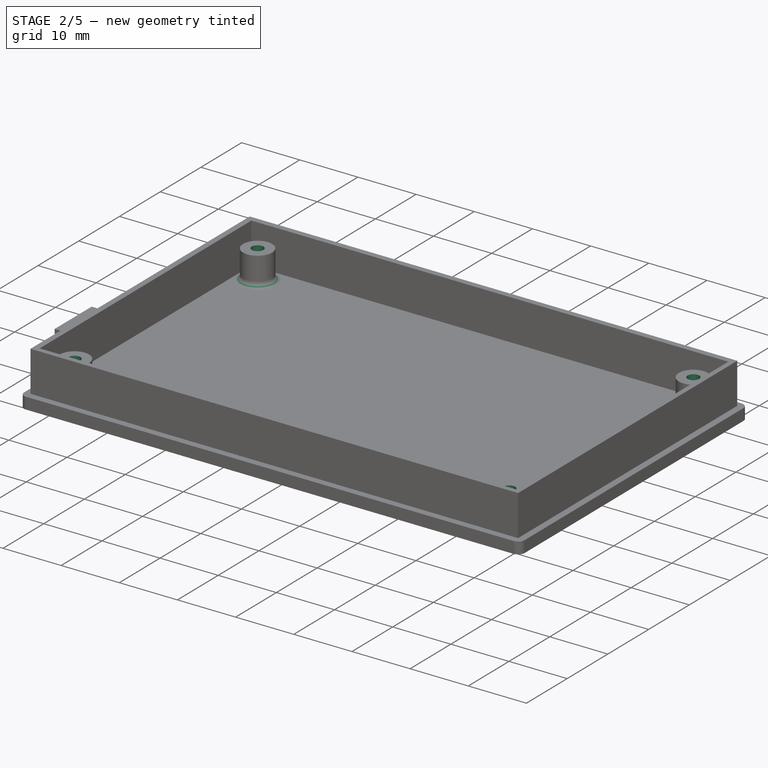
[diagram: stage 2 of 5 — iso view after this stage's code; geometry added in this stage tinted green]
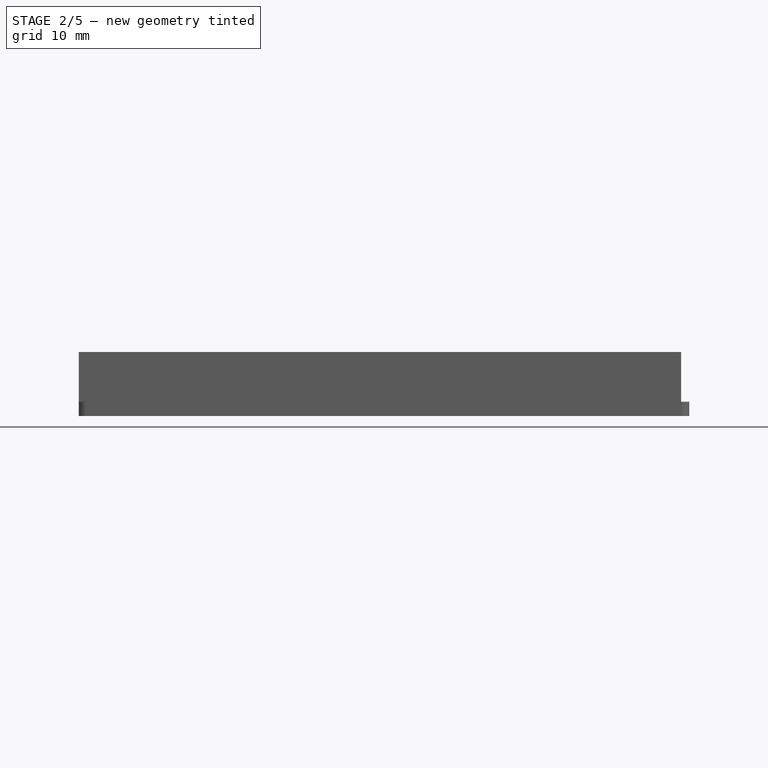
[diagram: stage 2 of 5 — front view after this stage's code; geometry added in this stage tinted green]
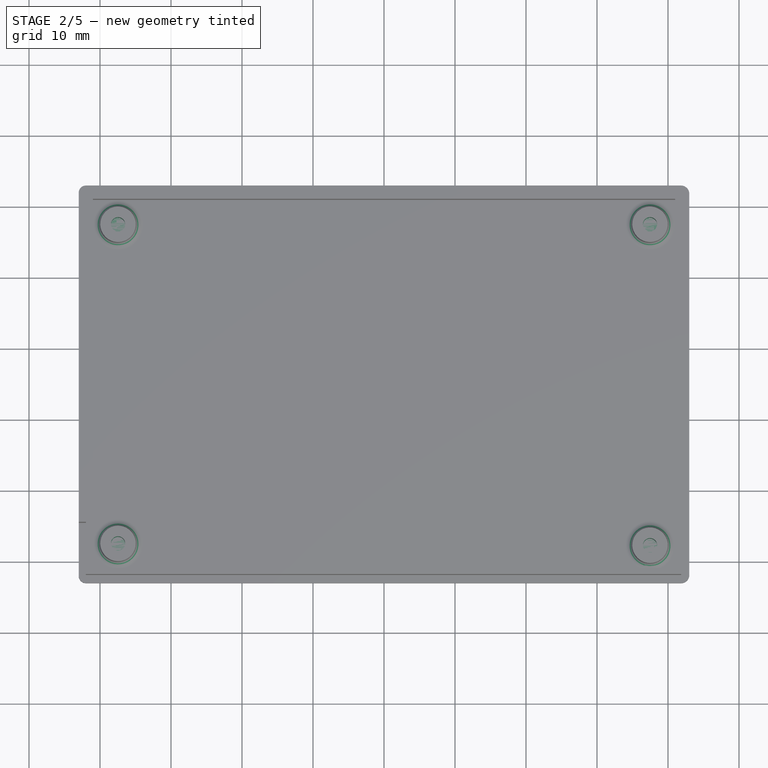
[diagram: stage 2 of 5 — top view after this stage's code; geometry added in this stage tinted green]
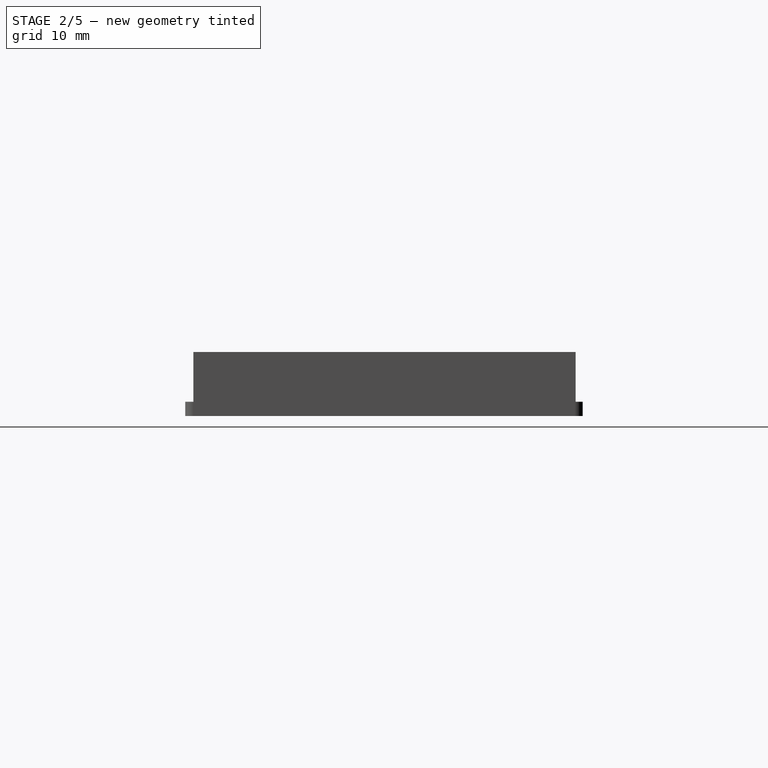
[diagram: stage 2 of 5 — right view after this stage's code; geometry added in this stage tinted green]
FEATURE [Sketcher::SketchObject] Sketch  label="base sketch"
  ArcFitTolerance = 1e-06
  AttachmentSupport = -> [XY_Plane042]
  FullyConstrained = false
  MakeInternals = false
  MapMode = 5
  sketch-geometry (60):
    g0: LineSegment [constr] StartX=-1 StartY=1 StartZ=0 EndX=-1 EndY=-51 EndZ=0
    g1: LineSegment [constr] StartX=-1 StartY=-51 StartZ=0 EndX=81 EndY=-51 EndZ=0
    g2: LineSegment [constr] StartX=81 StartY=-51 StartZ=0 EndX=81 EndY=1 EndZ=0
    g3: LineSegment [constr] StartX=81 StartY=1 StartZ=0 EndX=-1 EndY=1 EndZ=0
    g4: LineSegment [constr] StartX=0.0127 StartY=-0.0127 StartZ=0 EndX=0.0127 EndY=-49.9873 EndZ=0
    g5: LineSegment [constr] StartX=0.0127 StartY=-49.9873 StartZ=0 EndX=79.9873 EndY=-49.9873 EndZ=0
    g6: LineSegment [constr] StartX=79.9873 StartY=-49.9873 StartZ=0 EndX=79.9873 EndY=-0.0127 EndZ=0
    g7: LineSegment [constr] StartX=79.9873 StartY=-0.0127 StartZ=0 EndX=0.0127 EndY=-0.0127 EndZ=0
    g8: LineSegment [constr] StartX=-2 StartY=2 StartZ=0 EndX=-2 EndY=-52 EndZ=0
    g9: LineSegment [constr] StartX=-2 StartY=-52 StartZ=0 EndX=82 EndY=-52 EndZ=0
    g10: LineSegment [constr] StartX=82 StartY=-52 StartZ=0 EndX=82 EndY=2 EndZ=0
    g11: LineSegment [constr] StartX=82 StartY=2 StartZ=0 EndX=-2 EndY=2 EndZ=0
    g12: GeomPoint X=2.54001 Y=-2.54001 Z=0
    g13: GeomPoint X=77.4702 Y=-2.54001 Z=0
    g14: GeomPoint X=76.4542 Y=-2.54001 Z=0
    g15: GeomPoint X=3.55601 Y=-2.54001 Z=0
    g16: GeomPoint X=77.4702 Y=-47.7521 Z=0
    g17: GeomPoint X=76.4542 Y=-47.7521 Z=0
    g18: GeomPoint X=2.54001 Y=-47.4981 Z=0
    g19: GeomPoint X=3.55601 Y=-47.4981 Z=0
    g20: GeomPoint X=0.277038 Y=-35.5161 Z=0
    g21: GeomPoint X=0.277038 Y=-44.3161 Z=0
    g22: GeomPoint X=14.277 Y=-44.3161 Z=0
    g23: GeomPoint X=14.377 Y=-35.5161 Z=0
    g24: GeomPoint X=18.161 Y=-42.2501 Z=0
    g25: GeomPoint X=18.161 Y=-48.0501 Z=0
    g26: GeomPoint X=28.321 Y=-48.0501 Z=0
    g27: GeomPoint X=28.321 Y=-42.2501 Z=0
    g28: GeomPoint X=30.8611 Y=-42.2501 Z=0
    g29: GeomPoint X=30.8611 Y=-48.0501 Z=0
    g30: GeomPoint X=41.0211 Y=-48.0501 Z=0
    g31: GeomPoint X=41.0211 Y=-42.2501 Z=0
    g32: GeomPoint X=43.5611 Y=-42.2501 Z=0
    g33: GeomPoint X=43.5611 Y=-48.0501 Z=0
    g34: GeomPoint X=53.7211 Y=-48.0501 Z=0
    g35: GeomPoint X=53.7211 Y=-42.2501 Z=0
    g36: GeomPoint X=56.2611 Y=-42.2501 Z=0
    g37: GeomPoint X=56.2611 Y=-48.0501 Z=0
    g38: GeomPoint X=66.4211 Y=-48.0501 Z=0
    g39: GeomPoint X=66.4211 Y=-42.2501 Z=0
    g40: LineSegment StartX=-3 StartY=1.98579 StartZ=0 EndX=-3 EndY=-51.9696 EndZ=0
    g41: LineSegment StartX=-1.96959 StartY=-53 StartZ=0 EndX=81.8525 EndY=-53 EndZ=0
    g42: LineSegment StartX=83 StartY=-51.8525 StartZ=0 EndX=83 EndY=1.83683 EndZ=0
    g43: LineSegment StartX=81.8368 StartY=3 StartZ=0 EndX=-1.98579 EndY=3 EndZ=0
    g44: GeomPoint X=-2 Y=2 Z=0
    g45: GeomPoint X=-1 Y=1 Z=0
    g46: GeomPoint X=82 Y=2 Z=0
    g47: GeomPoint X=81 Y=1 Z=0
    g48: GeomPoint X=81 Y=-51 Z=0
    g49: GeomPoint X=82 Y=-52 Z=0
    g50: GeomPoint X=-1 Y=-51 Z=0
    g51: GeomPoint X=-2 Y=-52 Z=0
    g52: ArcOfCircle CenterX=-1.98579 CenterY=1.98579 CenterZ=0 NormalX=0 NormalY=0 NormalZ=1 AngleXU=0 Radius=1.01421 StartAngle=1.5708 EndAngle=3.14159
    g53: GeomPoint [constr] X=-3 Y=3 Z=0
    g54: ArcOfCircle CenterX=81.8368 CenterY=1.83683 CenterZ=0 NormalX=0 NormalY=0 NormalZ=1 AngleXU=0 Radius=1.16317 StartAngle=0 EndAngle=1.5708
    g55: GeomPoint [constr] X=83 Y=3 Z=0
    g56: ArcOfCircle CenterX=81.8525 CenterY=-51.8525 CenterZ=0 NormalX=0 NormalY=0 NormalZ=1 AngleXU=0 Radius=1.14755 StartAngle=4.71239 EndAngle=6.28319
    g57: GeomPoint [constr] X=83 Y=-53 Z=0
    g58: ArcOfCircle CenterX=-1.96959 CenterY=-51.9696 CenterZ=0 NormalX=0 NormalY=0 NormalZ=1 AngleXU=0 Radius=1.03041 StartAngle=3.14159 EndAngle=4.71239
    g59: GeomPoint [constr] X=-3 Y=-53 Z=0
  constraints (96):
    c: DistanceX(g-4,g-4) = 79.9746
    c: DistanceY(g-3,g-3) = 49.9746
    c: Coincident(g0,g1)
    c: Coincident(g1,g2)
    c: Coincident(g2,g3)
    c: Coincident(g3,g0)
    c: Vertical(g0)
    c: Vertical(g2)
    c: Horizontal(g1)
    c: Horizontal(g3)
    c: DistanceX(g1,g1) = 82
    c: DistanceY(g2,g2) = 52
    c: Distance(g3,g-1) = 1
    c: Distance(g-2,g0) = 1
    c: Coincident(g4,g5)
    c: Coincident(g5,g6)
    c: Coincident(g6,g7)
    c: Coincident(g7,g4)
    c: Vertical(g4)
    c: Vertical(g6)
    c: Horizontal(g5)
    c: Horizontal(g7)
    c: Coincident(g4,g-4)
    c: Coincident(g5,g-10)
    c: Coincident(g8,g9)
    c: Coincident(g9,g10)
    c: Coincident(g10,g11)
    c: Coincident(g11,g8)
    c: Vertical(g8)
    c: Vertical(g10)
    c: Horizontal(g9)
    c: Horizontal(g11)
    c: Distance(g10,g2) = 1
    c: Distance(g9,g1) = 1
    c: DistanceX(g11,g11) = 84
    c: DistanceY(g8,g8) = 54
    c: Coincident(g12,g-6)
    c: Coincident(g13,g-8)
    c: Coincident(g14,g-8)
    c: Coincident(g15,g-6)
    c: Coincident(g16,g-12)
    c: Coincident(g17,g-12)
    c: Coincident(g18,g-11)
    c: Coincident(g19,g-11)
    c: Coincident(g20,g-18)
    c: Coincident(g21,g-13)
    c: Coincident(g22,g-15)
    c: Coincident(g23,g-16)
    c: Coincident(g24,g-19)
    c: Coincident(g25,g-21)
    c: Coincident(g26,g-21)
    c: Coincident(g27,g-20)
    c: Coincident(g28,g-23)
    c: Coincident(g29,g-23)
    c: Coincident(g30,g-24)
    c: Coincident(g31,g-24)
    c: Coincident(g32,g-25)
    c: Coincident(g33,g-26)
    c: Coincident(g34,g-27)
    c: Coincident(g35,g-27)
    c: Coincident(g36,g-28)
    c: Coincident(g37,g-29)
    c: Coincident(g38,g-30)
    c: Coincident(g39,g-30)
    c: Vertical(g40)
    c: Vertical(g42)
    c: Horizontal(g41)
    c: Horizontal(g43)
    c: Distance(g57,g10) = 1
    c: Distance(g55,g11) = 1
    c: DistanceY(g59,g53) = 56
    c: DistanceX(g59,g57) = 86
    c: Coincident(g44,g8)
    c: Coincident(g45,g0)
    c: Coincident(g46,g10)
    c: Coincident(g47,g2)
    c: Coincident(g48,g1)
    c: Coincident(g49,g9)
    c: Coincident(g50,g0)
    c: Coincident(g51,g8)
    c: PointOnObject(g53,g40)
    c: PointOnObject(g53,g43)
    c: Tangent(g40,g52) = -1.5708
    c: Tangent(g43,g52) = -1.5708
    c: PointOnObject(g55,g42)
    c: PointOnObject(g55,g43)
    c: Tangent(g42,g54) = -1.5708
    c: Tangent(g43,g54) = -1.5708
    c: PointOnObject(g57,g41)
    c: PointOnObject(g57,g42)
    c: Tangent(g41,g56) = -1.5708
    c: Tangent(g42,g56) = -1.5708
    c: PointOnObject(g59,g40)
    c: PointOnObject(g59,g41)
    c: Tangent(g40,g58) = -1.5708
    c: Tangent(g41,g58) = -1.5708
FEATURE [PartDesign::Pad] Pad  label="base Pad"
  Direction = (0,0,1)
  Length = 2
  Length2 = 10
  Profile = -> Sketch
  ReferenceAxis = -> Sketch [N_Axis]
  Refine = true
  Suppressed = false
  Type = 0
FEATURE [Sketcher::SketchObject] Sketch001
  ArcFitTolerance = 1e-06
  AttachmentSupport = -> [XY_Plane042]
  FullyConstrained = false
  MakeInternals = false
  MapMode = 5
  sketch-geometry (62):
    g0: LineSegment [constr] StartX=-3 StartY=3 StartZ=0 EndX=-3 EndY=26.4756 EndZ=0
    g1: LineSegment [constr] StartX=6.01838 StartY=9.02488 StartZ=0 EndX=6.01838 EndY=-2.53263 EndZ=0
    g2: LineSegment [constr] StartX=-1 StartY=1 StartZ=0 EndX=-1 EndY=-51 EndZ=0
    g3: LineSegment [constr] StartX=-1 StartY=-51 StartZ=0 EndX=81 EndY=-51 EndZ=0
    g4: LineSegment [constr] StartX=81 StartY=-51 StartZ=0 EndX=81 EndY=1 EndZ=0
    g5: LineSegment [constr] StartX=81 StartY=1 StartZ=0 EndX=-1 EndY=1 EndZ=0
    g6: LineSegment [constr] StartX=0.0127 StartY=-0.0127 StartZ=0 EndX=0.0127 EndY=-49.9873 EndZ=0
    g7: LineSegment [constr] StartX=0.0127 StartY=-49.9873 StartZ=0 EndX=79.9873 EndY=-49.9873 EndZ=0
    g8: LineSegment [constr] StartX=79.9873 StartY=-49.9873 StartZ=0 EndX=79.9873 EndY=-0.0127 EndZ=0
    g9: LineSegment [constr] StartX=79.9873 StartY=-0.0127 StartZ=0 EndX=0.0127 EndY=-0.0127 EndZ=0
    g10: LineSegment [constr] StartX=-2 StartY=2 StartZ=0 EndX=-2 EndY=-52 EndZ=0
    g11: LineSegment [constr] StartX=-2 StartY=-52 StartZ=0 EndX=82 EndY=-52 EndZ=0
    g12: LineSegment [constr] StartX=82 StartY=-52 StartZ=0 EndX=82 EndY=2 EndZ=0
    g13: LineSegment [constr] StartX=82 StartY=2 StartZ=0 EndX=-2 EndY=2 EndZ=0
    g14: GeomPoint X=2.54 Y=-2.54 Z=0
    g15: GeomPoint X=77.4702 Y=-2.54 Z=0
    g16: GeomPoint X=76.4542 Y=-2.54 Z=0
    g17: GeomPoint X=3.55601 Y=-2.54 Z=0
    g18: GeomPoint X=77.4702 Y=-47.7521 Z=0
    g19: GeomPoint X=76.4542 Y=-47.7521 Z=0
    g20: GeomPoint X=2.54 Y=-47.4981 Z=0
    g21: GeomPoint X=3.55601 Y=-47.4981 Z=0
    g22: GeomPoint X=0.277038 Y=-35.5161 Z=0
    g23: GeomPoint X=0.277038 Y=-44.3161 Z=0
    g24: GeomPoint X=14.277 Y=-44.3161 Z=0
    g25: GeomPoint X=14.377 Y=-35.5161 Z=0
    g26: GeomPoint X=18.161 Y=-42.2501 Z=0
    g27: GeomPoint X=18.161 Y=-48.0501 Z=0
    g28: GeomPoint X=28.321 Y=-48.0501 Z=0
    g29: GeomPoint X=28.321 Y=-42.2501 Z=0
    g30: GeomPoint X=30.8611 Y=-42.2501 Z=0
    g31: GeomPoint X=30.8611 Y=-48.0501 Z=0
    g32: GeomPoint X=41.0211 Y=-48.0501 Z=0
    g33: GeomPoint X=41.0211 Y=-42.2501 Z=0
    g34: GeomPoint X=43.5611 Y=-42.2501 Z=0
    g35: GeomPoint X=43.5611 Y=-48.0501 Z=0
    g36: GeomPoint X=53.7211 Y=-48.0501 Z=0
    g37: GeomPoint X=53.7211 Y=-42.2501 Z=0
    g38: GeomPoint X=56.2611 Y=-42.2501 Z=0
    g39: GeomPoint X=56.2611 Y=-48.0501 Z=0
    g40: GeomPoint X=66.4211 Y=-48.0501 Z=0
    g41: GeomPoint X=66.4211 Y=-42.2501 Z=0
    g42: LineSegment StartX=-3 StartY=1.98579 StartZ=0 EndX=-3 EndY=-51.9696 EndZ=0
    g43: LineSegment StartX=-1.96959 StartY=-53 StartZ=0 EndX=81.8525 EndY=-53 EndZ=0
    g44: LineSegment StartX=83 StartY=-51.8525 StartZ=0 EndX=83 EndY=1.83683 EndZ=0
    g45: LineSegment StartX=81.8368 StartY=3 StartZ=0 EndX=-1.98579 EndY=3 EndZ=0
    g46: GeomPoint X=-2 Y=2 Z=0
    g47: GeomPoint X=-1 Y=1 Z=0
    g48: GeomPoint X=82 Y=2 Z=0
    g49: GeomPoint X=81 Y=1 Z=0
    g50: GeomPoint X=81 Y=-51 Z=0
    g51: GeomPoint X=82 Y=-52 Z=0
    g52: GeomPoint X=-1 Y=-51 Z=0
    g53: GeomPoint X=-2 Y=-52 Z=0
    g54: ArcOfCircle CenterX=-1.98579 CenterY=1.98579 CenterZ=0 NormalX=0 NormalY=0 NormalZ=1 AngleXU=0 Radius=1.01421 StartAngle=1.5708 EndAngle=3.14159
    g55: GeomPoint [constr] X=-3 Y=3 Z=0
    g56: ArcOfCircle CenterX=81.8368 CenterY=1.83683 CenterZ=0 NormalX=0 NormalY=0 NormalZ=1 AngleXU=0 Radius=1.16317 StartAngle=0 EndAngle=1.5708
    g57: GeomPoint [constr] X=83 Y=3 Z=0
    g58: ArcOfCircle CenterX=81.8525 CenterY=-51.8525 CenterZ=0 NormalX=0 NormalY=0 NormalZ=1 AngleXU=0 Radius=1.14754 StartAngle=4.71239 EndAngle=6.28319
    g59: GeomPoint [constr] X=83 Y=-53 Z=0
    g60: ArcOfCircle CenterX=-1.96959 CenterY=-51.9696 CenterZ=0 NormalX=0 NormalY=0 NormalZ=1 AngleXU=0 Radius=1.03041 StartAngle=3.14159 EndAngle=4.71239
    g61: GeomPoint [constr] X=-3 Y=-53 Z=0
  constraints (66):
    c: Coincident(g0,g-4)
    c: Vertical(g0)
    c: Coincident(g2,g3)
    c: Coincident(g3,g4)
    c: Coincident(g4,g5)
    c: Coincident(g5,g2)
    c: Vertical(g2)
    c: Vertical(g4)
    c: Horizontal(g3)
    c: Horizontal(g5)
    c: DistanceX(g3,g3) = 82
    c: DistanceY(g4,g4) = 52
    c: Distance(g5,g-1) = 1
    c: Distance(g-2,g2) = 1
    c: Coincident(g6,g7)
    c: Coincident(g7,g8)
    c: Coincident(g8,g9)
    c: Coincident(g9,g6)
    c: Vertical(g6)
    c: Vertical(g8)
    c: Horizontal(g7)
    c: Horizontal(g9)
    c: Coincident(g10,g11)
    c: Coincident(g11,g12)
    c: Coincident(g12,g13)
    c: Coincident(g13,g10)
    c: Vertical(g10)
    c: Vertical(g12)
    c: Horizontal(g11)
    c: Horizontal(g13)
    c: Distance(g12,g4) = 1
    c: Distance(g11,g3) = 1
    c: DistanceX(g13,g13) = 84
    c: DistanceY(g10,g10) = 54
    c: Vertical(g42)
    c: Vertical(g44)
    c: Horizontal(g43)
    c: Horizontal(g45)
    c: Distance(g59,g12) = 1
    c: Distance(g57,g13) = 1
    c: DistanceY(g61,g55) = 56
    c: DistanceX(g61,g59) = 86
    c: Coincident(g46,g10)
    c: Coincident(g47,g2)
    c: Coincident(g48,g12)
    c: Coincident(g49,g4)
    c: Coincident(g50,g3)
    c: Coincident(g51,g11)
    c: Coincident(g52,g2)
    c: Coincident(g53,g10)
    c: PointOnObject(g55,g42)
    c: PointOnObject(g55,g45)
    c: Tangent(g42,g54) = -1.5708
    c: Tangent(g45,g54) = -1.5708
    c: PointOnObject(g57,g44)
    c: PointOnObject(g57,g45)
    c: Tangent(g44,g56) = -1.5708
    c: Tangent(g45,g56) = -1.5708
    c: PointOnObject(g59,g43)
    c: PointOnObject(g59,g44)
    c: Tangent(g43,g58) = -1.5708
    c: Tangent(g44,g58) = -1.5708
    c: PointOnObject(g61,g42)
    c: PointOnObject(g61,g43)
    c: Tangent(g42,g60) = -1.5708
    c: Tangent(g43,g60) = -1.5708
FEATURE [PartDesign::Pad] Pad001  label="ear_pad"
  BaseFeature = -> Pad
  Direction = (0,0,1)
  Length = 2
  Length2 = 10
  Profile = -> Sketch001
  ReferenceAxis = -> Sketch001 [N_Axis]
  Refine = true
  Suppressed = false
  Type = 0
FEATURE [Sketcher::SketchObject] Sketch002
  ArcFitTolerance = 1e-06
  AttachmentSupport = -> [Pad001]
  FullyConstrained = false
  MakeInternals = false
  MapMode = 5
  Placement = pos=(0,0,2) rot=(0,0,1;0rad)
  sketch-geometry (60):
    g0: LineSegment [constr] StartX=-1 StartY=1 StartZ=0 EndX=-1 EndY=-51 EndZ=0
    g1: LineSegment [constr] StartX=-1 StartY=-51 StartZ=0 EndX=81 EndY=-51 EndZ=0
    g2: LineSegment [constr] StartX=81 StartY=-51 StartZ=0 EndX=81 EndY=1 EndZ=0
    g3: LineSegment [constr] StartX=81 StartY=1 StartZ=0 EndX=-1 EndY=1 EndZ=0
    g4: LineSegment [constr] StartX=0.0127 StartY=-0.0127 StartZ=0 EndX=0.0127 EndY=-49.9873 EndZ=0
    g5: LineSegment [constr] StartX=0.0127 StartY=-49.9873 StartZ=0 EndX=79.9873 EndY=-49.9873 EndZ=0
    g6: LineSegment [constr] StartX=79.9873 StartY=-49.9873 StartZ=0 EndX=79.9873 EndY=-0.0127 EndZ=0
    g7: LineSegment [constr] StartX=79.9873 StartY=-0.0127 StartZ=0 EndX=0.0127 EndY=-0.0127 EndZ=0
    g8: LineSegment [constr] StartX=-2 StartY=2 StartZ=0 EndX=-2 EndY=-52 EndZ=0
    g9: LineSegment [constr] StartX=-2 StartY=-52 StartZ=0 EndX=82 EndY=-52 EndZ=0
    g10: LineSegment [constr] StartX=82 StartY=-52 StartZ=0 EndX=82 EndY=2 EndZ=0
    g11: LineSegment [constr] StartX=82 StartY=2 StartZ=0 EndX=-2 EndY=2 EndZ=0
    g12: GeomPoint X=2.54 Y=-2.54 Z=0
    g13: GeomPoint X=77.4702 Y=-2.54 Z=0
    g14: GeomPoint X=76.4542 Y=-2.54 Z=0
    g15: GeomPoint X=3.55601 Y=-2.54 Z=0
    g16: GeomPoint X=77.4702 Y=-47.7521 Z=0
    g17: GeomPoint X=76.4542 Y=-47.7521 Z=0
    g18: GeomPoint X=2.54 Y=-47.4981 Z=0
    g19: GeomPoint X=3.55601 Y=-47.4981 Z=0
    g20: GeomPoint X=0.277038 Y=-35.5161 Z=0
    g21: GeomPoint X=0.277038 Y=-44.3161 Z=0
    g22: GeomPoint X=14.277 Y=-44.3161 Z=0
    g23: GeomPoint X=14.377 Y=-35.5161 Z=0
    g24: GeomPoint X=18.161 Y=-42.2501 Z=0
    g25: GeomPoint X=18.161 Y=-48.0501 Z=0
    g26: GeomPoint X=28.321 Y=-48.0501 Z=0
    g27: GeomPoint X=28.321 Y=-42.2501 Z=0
    g28: GeomPoint X=30.8611 Y=-42.2501 Z=0
    g29: GeomPoint X=30.8611 Y=-48.0501 Z=0
    g30: GeomPoint X=41.0211 Y=-48.0501 Z=0
    g31: GeomPoint X=41.0211 Y=-42.2501 Z=0
    g32: GeomPoint X=43.5611 Y=-42.2501 Z=0
    g33: GeomPoint X=43.5611 Y=-48.0501 Z=0
    g34: GeomPoint X=53.7211 Y=-48.0501 Z=0
    g35: GeomPoint X=53.7211 Y=-42.2501 Z=0
    g36: GeomPoint X=56.2611 Y=-42.2501 Z=0
    g37: GeomPoint X=56.2611 Y=-48.0501 Z=0
    g38: GeomPoint X=66.4211 Y=-48.0501 Z=0
    g39: GeomPoint X=66.4211 Y=-42.2501 Z=0
    g40: GeomPoint X=-2 Y=2 Z=0
    g41: GeomPoint X=-1 Y=1 Z=0
    g42: GeomPoint X=82 Y=2 Z=0
    g43: GeomPoint X=81 Y=1 Z=0
    g44: GeomPoint X=81 Y=-51 Z=0
    g45: GeomPoint X=82 Y=-52 Z=0
    g46: GeomPoint X=-1 Y=-51 Z=0
    g47: GeomPoint X=-2 Y=-52 Z=0
    g48: GeomPoint [constr] X=-3 Y=3 Z=0
    g49: GeomPoint [constr] X=83 Y=3 Z=0
    g50: GeomPoint [constr] X=83 Y=-53 Z=0
    g51: GeomPoint [constr] X=-3 Y=-53 Z=0
    g52: LineSegment StartX=-1.98579 StartY=1.98579 StartZ=0 EndX=-1.98579 EndY=-51.8525 EndZ=0
    g53: LineSegment StartX=-1.98579 StartY=-51.8525 StartZ=0 EndX=81.8525 EndY=-51.8525 EndZ=0
    g54: LineSegment StartX=81.8525 StartY=-51.8525 StartZ=0 EndX=81.8525 EndY=1.98579 EndZ=0
    g55: LineSegment StartX=81.8525 StartY=1.98579 StartZ=0 EndX=-1.98579 EndY=1.98579 EndZ=0
    g56: LineSegment StartX=81 StartY=-51 StartZ=0 EndX=81 EndY=1 EndZ=0
    g57: LineSegment StartX=81 StartY=1 StartZ=0 EndX=-1 EndY=1 EndZ=0
    g58: LineSegment StartX=-1 StartY=1 StartZ=0 EndX=-1 EndY=-51 EndZ=0
    g59: LineSegment StartX=-1 StartY=-51 StartZ=0 EndX=81 EndY=-51 EndZ=0
  constraints (62):
    c: Coincident(g0,g1)
    c: Coincident(g1,g2)
    c: Coincident(g2,g3)
    c: Coincident(g3,g0)
    c: Vertical(g0)
    c: Vertical(g2)
    c: Horizontal(g1)
    c: Horizontal(g3)
    c: DistanceX(g1,g1) = 82
    c: DistanceY(g2,g2) = 52
    c: Distance(g3,g-1) = 1
    c: Distance(g-2,g0) = 1
    c: Coincident(g4,g5)
    c: Coincident(g5,g6)
    c: Coincident(g6,g7)
    c: Coincident(g7,g4)
    c: Vertical(g4)
    c: Vertical(g6)
    c: Horizontal(g5)
    c: Horizontal(g7)
    c: Coincident(g8,g9)
    c: Coincident(g9,g10)
    c: Coincident(g10,g11)
    c: Coincident(g11,g8)
    c: Vertical(g8)
    c: Vertical(g10)
    c: Horizontal(g9)
    c: Horizontal(g11)
    c: Distance(g10,g2) = 1
    c: Distance(g9,g1) = 1
    c: DistanceX(g11,g11) = 84
    c: DistanceY(g8,g8) = 54
    c: Distance(g50,g10) = 1
    c: Distance(g49,g11) = 1
    c: DistanceY(g51,g48) = 56
    c: DistanceX(g51,g50) = 86
    c: Coincident(g40,g8)
    c: Coincident(g41,g0)
    c: Coincident(g42,g10)
    c: Coincident(g43,g2)
    c: Coincident(g44,g1)
    c: Coincident(g45,g9)
    c: Coincident(g46,g0)
    c: Coincident(g47,g8)
    c: Coincident(g52,g53)
    c: Coincident(g53,g54)
    c: Coincident(g54,g55)
    c: Coincident(g55,g52)
    c: Vertical(g52)
    c: Vertical(g54)
    c: Horizontal(g53)
    c: Horizontal(g55)
    c: Coincident(g56,g57)
    c: Coincident(g57,g58)
    c: Coincident(g58,g59)
    c: Coincident(g59,g56)
    c: Vertical(g56)
    c: Vertical(g58)
    c: Horizontal(g57)
    c: Horizontal(g59)
    c: Coincident(g56,g1)
    c: Coincident(g57,g0)
FEATURE [PartDesign::Pad] Pad002
  BaseFeature = -> Pad001
  Direction = (0,0,1)
  Length = 7
  Length2 = 10
  Profile = -> Sketch002
  ReferenceAxis = -> Sketch002 [N_Axis]
  Refine = true
  Suppressed = false
  Type = 0
FEATURE [PartDesign::Body] Body  label="bottomcase"
  AllowCompound = false
  Group = -> [Sketch,Pad,Sketch001,Pad001,Sketch002,Pad002,Sketch003,Pad003,Sketch004,Pad004,Sketch011,Pad006,Fillet001,ShapeString,Pad013,Sketch018,Pad014,Chamfer]
  Origin = -> Origin042
  Tip = -> Chamfer
FEATURE [PartDesign::Pocket] Pocket006
  BaseFeature = -> Pad011
  Direction = (0,0,-1)
  Length = 5
  Length2 = 5
  Profile = -> Sketch017
  ReferenceAxis = -> Sketch017 [N_Axis]
  Refine = true
  Suppressed = false
  Type = 0
FEATURE [PartDesign::Fillet] Fillet002
  Base = -> Pocket006 [Edge63,Edge64,Edge61,Edge62]
  BaseFeature = -> Pocket006
  Radius = 1
  Refine = true
  SupportTransform = false
  Suppressed = false
  UseAllEdges = false
FEATURE [PartDesign::Body] Body002  label="bottomcase001"
  AllowCompound = false
  Group = -> [Sketch012,Pad007,Sketch013,Pad008,Sketch014,Pad009,Sketch015,Pad010,Sketch016,Pad011,Sketch017,Pocket006,Fillet002]
  Origin = -> Origin044
  Tip = -> Fillet002
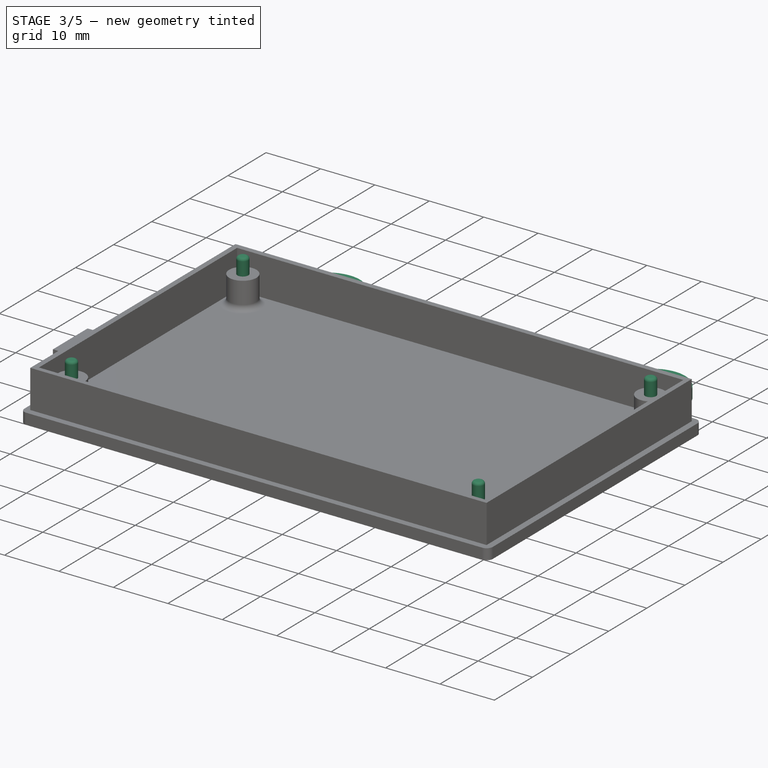
[diagram: stage 3 of 5 — iso view after this stage's code; geometry added in this stage tinted green]
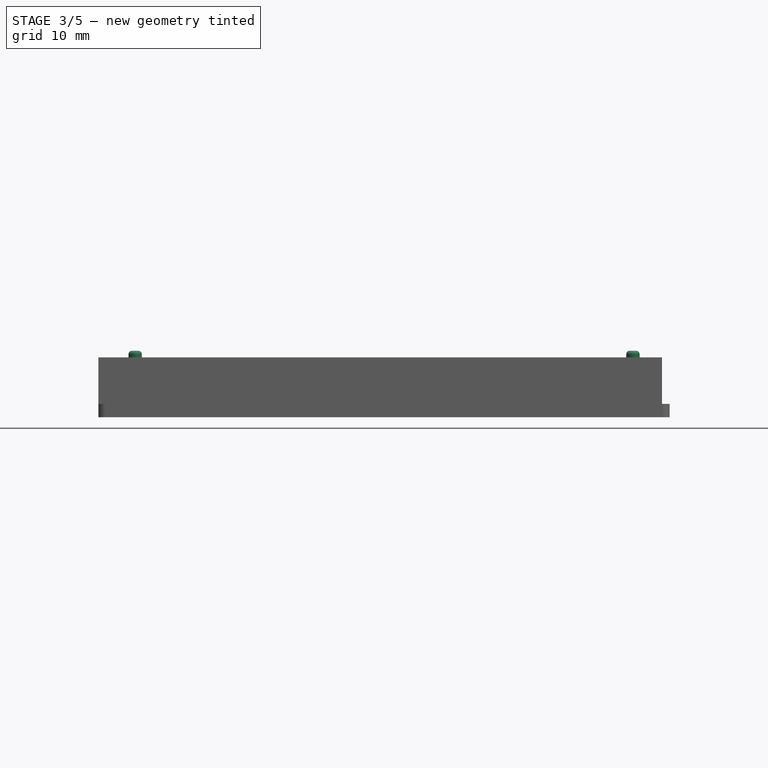
[diagram: stage 3 of 5 — front view after this stage's code; geometry added in this stage tinted green]
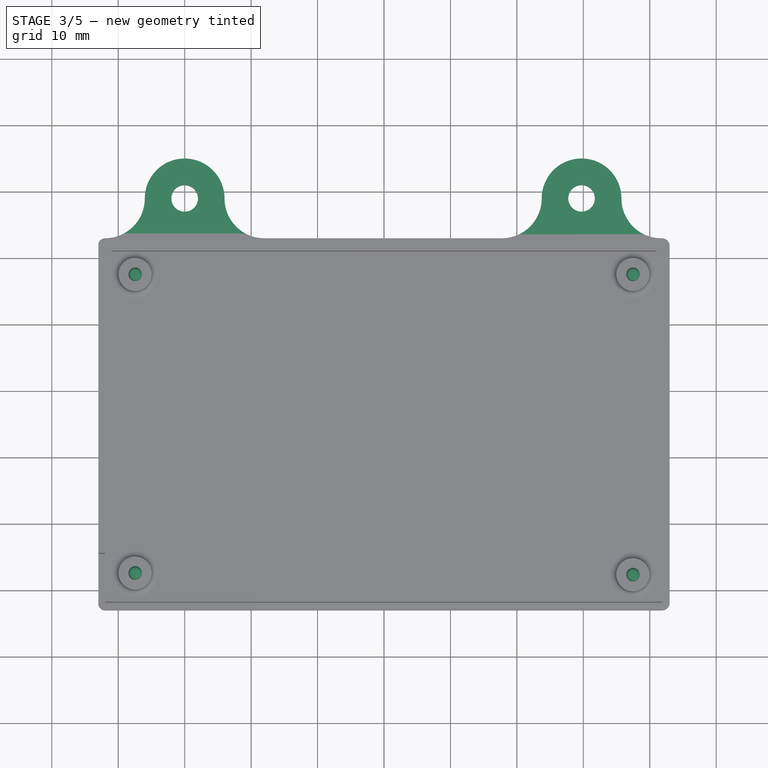
[diagram: stage 3 of 5 — top view after this stage's code; geometry added in this stage tinted green]
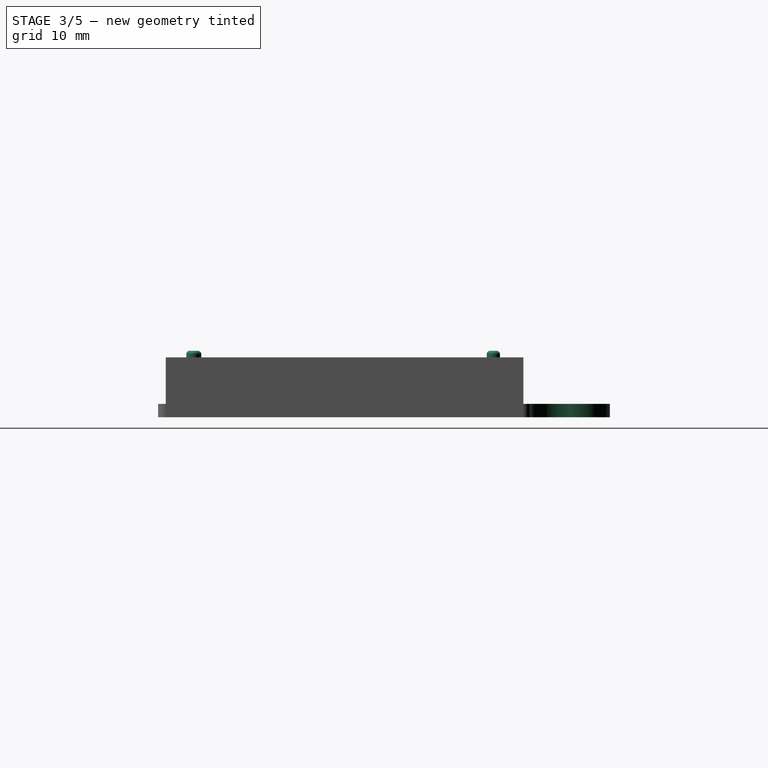
[diagram: stage 3 of 5 — right view after this stage's code; geometry added in this stage tinted green]
FEATURE [Sketcher::SketchObject] Sketch003
  ArcFitTolerance = 1e-06
  AttachmentSupport = -> [Pad]
  FullyConstrained = false
  MakeInternals = false
  MapMode = 5
  Placement = pos=(0,0,2) rot=(0,0,1;0rad)
  sketch-geometry (60):
    g0: LineSegment [constr] StartX=-1 StartY=1 StartZ=0 EndX=-1 EndY=-51 EndZ=0
    g1: LineSegment [constr] StartX=-1 StartY=-51 StartZ=0 EndX=81 EndY=-51 EndZ=0
    g2: LineSegment [constr] StartX=81 StartY=-51 StartZ=0 EndX=81 EndY=1 EndZ=0
    g3: LineSegment [constr] StartX=81 StartY=1 StartZ=0 EndX=-1 EndY=1 EndZ=0
    g4: LineSegment [constr] StartX=0.0127 StartY=-0.0127 StartZ=0 EndX=0.0127 EndY=-49.9873 EndZ=0
    g5: LineSegment [constr] StartX=0.0127 StartY=-49.9873 StartZ=0 EndX=79.9873 EndY=-49.9873 EndZ=0
    g6: LineSegment [constr] StartX=79.9873 StartY=-49.9873 StartZ=0 EndX=79.9873 EndY=-0.0127 EndZ=0
    g7: LineSegment [constr] StartX=79.9873 StartY=-0.0127 StartZ=0 EndX=0.0127 EndY=-0.0127 EndZ=0
    g8: LineSegment [constr] StartX=-2 StartY=2 StartZ=0 EndX=-2 EndY=-52 EndZ=0
    g9: LineSegment [constr] StartX=-2 StartY=-52 StartZ=0 EndX=82 EndY=-52 EndZ=0
    g10: LineSegment [constr] StartX=82 StartY=-52 StartZ=0 EndX=82 EndY=2 EndZ=0
    g11: LineSegment [constr] StartX=82 StartY=2 StartZ=0 EndX=-2 EndY=2 EndZ=0
    g12: GeomPoint X=2.54 Y=-2.54 Z=0
    g13: GeomPoint X=77.4702 Y=-2.54 Z=0
    g14: GeomPoint X=76.4542 Y=-2.54 Z=0
    g15: GeomPoint X=3.55601 Y=-2.54 Z=0
    g16: GeomPoint X=77.4702 Y=-47.7521 Z=0
    g17: GeomPoint X=76.4542 Y=-47.7521 Z=0
    g18: GeomPoint X=2.54 Y=-47.4981 Z=0
    g19: GeomPoint X=3.55601 Y=-47.4981 Z=0
    g20: GeomPoint X=0.277038 Y=-35.5161 Z=0
    g21: GeomPoint X=0.277038 Y=-44.3161 Z=0
    g22: GeomPoint X=14.277 Y=-44.3161 Z=0
    g23: GeomPoint X=14.377 Y=-35.5161 Z=0
    g24: GeomPoint X=18.161 Y=-42.2501 Z=0
    g25: GeomPoint X=18.161 Y=-48.0501 Z=0
    g26: GeomPoint X=28.321 Y=-48.0501 Z=0
    g27: GeomPoint X=28.321 Y=-42.2501 Z=0
    g28: GeomPoint X=30.8611 Y=-42.2501 Z=0
    g29: GeomPoint X=30.8611 Y=-48.0501 Z=0
    g30: GeomPoint X=41.0211 Y=-48.0501 Z=0
    g31: GeomPoint X=41.0211 Y=-42.2501 Z=0
    g32: GeomPoint X=43.5611 Y=-42.2501 Z=0
    g33: GeomPoint X=43.5611 Y=-48.0501 Z=0
    g34: GeomPoint X=53.7211 Y=-48.0501 Z=0
    g35: GeomPoint X=53.7211 Y=-42.2501 Z=0
    g36: GeomPoint X=56.2611 Y=-42.2501 Z=0
    g37: GeomPoint X=56.2611 Y=-48.0501 Z=0
    g38: GeomPoint X=66.4211 Y=-48.0501 Z=0
    g39: GeomPoint X=66.4211 Y=-42.2501 Z=0
    g40: GeomPoint X=-2 Y=2 Z=0
    g41: GeomPoint X=-1 Y=1 Z=0
    g42: GeomPoint X=82 Y=2 Z=0
    g43: GeomPoint X=81 Y=1 Z=0
    g44: GeomPoint X=81 Y=-51 Z=0
    g45: GeomPoint X=82 Y=-52 Z=0
    g46: GeomPoint X=-1 Y=-51 Z=0
    g47: GeomPoint X=-2 Y=-52 Z=0
    g48: GeomPoint [constr] X=-3 Y=3 Z=0
    g49: GeomPoint [constr] X=83 Y=3 Z=0
    g50: GeomPoint [constr] X=83 Y=-53 Z=0
    g51: GeomPoint [constr] X=-3 Y=-53 Z=0
    g52: Circle [constr] CenterX=2.54 CenterY=-2.54 CenterZ=0 NormalX=0 NormalY=0 NormalZ=1 AngleXU=0 Radius=1.016
    g53: Circle [constr] CenterX=77.4702 CenterY=-2.54 CenterZ=0 NormalX=0 NormalY=0 NormalZ=1 AngleXU=0 Radius=1.016
    g54: Circle [constr] CenterX=77.4702 CenterY=-47.7521 CenterZ=0 NormalX=0 NormalY=0 NormalZ=1 AngleXU=0 Radius=1.016
    g55: Circle [constr] CenterX=2.54 CenterY=-47.4981 CenterZ=0 NormalX=0 NormalY=0 NormalZ=1 AngleXU=0 Radius=1.016
    g56: Circle CenterX=2.54 CenterY=-47.4981 CenterZ=0 NormalX=0 NormalY=0 NormalZ=1 AngleXU=0 Radius=2.5
    g57: Circle CenterX=2.54 CenterY=-2.54 CenterZ=0 NormalX=0 NormalY=0 NormalZ=1 AngleXU=0 Radius=2.5
    g58: Circle CenterX=77.4702 CenterY=-2.54 CenterZ=0 NormalX=0 NormalY=0 NormalZ=1 AngleXU=0 Radius=2.5
    g59: Circle CenterX=77.4702 CenterY=-47.7521 CenterZ=0 NormalX=0 NormalY=0 NormalZ=1 AngleXU=0 Radius=2.5
  constraints (60):
    c: Coincident(g0,g1)
    c: Coincident(g1,g2)
    c: Coincident(g2,g3)
    c: Coincident(g3,g0)
    c: Vertical(g0)
    c: Vertical(g2)
    c: Horizontal(g1)
    c: Horizontal(g3)
    c: DistanceX(g1,g1) = 82
    c: DistanceY(g2,g2) = 52
    c: Distance(g3,g-1) = 1
    c: Distance(g-2,g0) = 1
    c: Coincident(g4,g5)
    c: Coincident(g5,g6)
    c: Coincident(g6,g7)
    c: Coincident(g7,g4)
    c: Vertical(g4)
    c: Vertical(g6)
    c: Horizontal(g5)
    c: Horizontal(g7)
    c: Coincident(g8,g9)
    c: Coincident(g9,g10)
    c: Coincident(g10,g11)
    c: Coincident(g11,g8)
    c: Vertical(g8)
    c: Vertical(g10)
    c: Horizontal(g9)
    c: Horizontal(g11)
    c: Distance(g10,g2) = 1
    c: Distance(g9,g1) = 1
    c: DistanceX(g11,g11) = 84
    c: DistanceY(g8,g8) = 54
    c: Distance(g50,g10) = 1
    c: Distance(g49,g11) = 1
    c: DistanceY(g51,g48) = 56
    c: DistanceX(g51,g50) = 86
    c: Coincident(g40,g8)
    c: Coincident(g41,g0)
    c: Coincident(g42,g10)
    c: Coincident(g43,g2)
    c: Coincident(g44,g1)
    c: Coincident(g45,g9)
    c: Coincident(g46,g0)
    c: Coincident(g47,g8)
    c: Coincident(g52,g12)
    c: PointOnObject(g15,g52)
    c: Coincident(g53,g13)
    c: PointOnObject(g14,g53)
    c: Coincident(g54,g16)
    c: PointOnObject(g17,g54)
    c: Coincident(g55,g18)
    c: PointOnObject(g19,g55)
    c: Diameter(g56) = 5
    c: Coincident(g56,g18)
    c: Diameter(g57) = 5
    c: Coincident(g57,g12)
    c: Diameter(g58) = 5
    c: Coincident(g58,g13)
    c: Diameter(g59) = 5
    c: Coincident(g59,g16)
FEATURE [PartDesign::Pad] Pad003
  BaseFeature = -> Pad002
  Direction = (0,0,1)
  Length = 5
  Length2 = 10
  Profile = -> Sketch003
  ReferenceAxis = -> Sketch003 [N_Axis]
  Refine = true
  Suppressed = false
  Type = 0
FEATURE [Sketcher::SketchObject] Sketch004
  ArcFitTolerance = 1e-06
  AttachmentSupport = -> [Pad003]
  ExternalGeometry = -> [Pad003]
  FullyConstrained = false
  MakeInternals = false
  MapMode = 5
  Placement = pos=(-1.98579,0,0) rot=(0.57735,-0.57735,-0.57735;2.0944rad)
  sketch-geometry (4):
    g0: LineSegment StartX=35.3983 StartY=9 StartZ=0 EndX=35.3983 EndY=2 EndZ=0
    g1: LineSegment StartX=35.3983 StartY=2 StartZ=0 EndX=44.4978 EndY=2 EndZ=0
    g2: LineSegment StartX=44.4978 StartY=2 StartZ=0 EndX=44.4978 EndY=9 EndZ=0
    g3: LineSegment StartX=44.4978 StartY=9 StartZ=0 EndX=35.3983 EndY=9 EndZ=0
  constraints (10):
    c: Coincident(g0,g1)
    c: Coincident(g1,g2)
    c: Coincident(g2,g3)
    c: Coincident(g3,g0)
    c: Vertical(g0)
    c: Vertical(g2)
    c: Horizontal(g1)
    c: Horizontal(g3)
    c: PointOnObject(g0,g-3)
    c: PointOnObject(g1,g-4)
FEATURE [PartDesign::Pad] Pad004
  BaseFeature = -> Pad003
  Direction = (-1,0,0)
  Length = 1
  Length2 = 10
  Profile = -> Sketch004
  ReferenceAxis = -> Sketch004 [N_Axis]
  Refine = true
  Suppressed = false
  Type = 0
FEATURE [Sketcher::SketchObject] Sketch011
  ArcFitTolerance = 1e-06
  AttachmentSupport = -> [Pad004]
  ExternalGeometry = -> [Pad004]
  FullyConstrained = true
  MakeInternals = false
  MapMode = 5
  Placement = pos=(0,0,7) rot=(0,0,1;0rad)
  sketch-geometry (4):
    g0: Circle CenterX=2.54 CenterY=-2.54 CenterZ=0 NormalX=0 NormalY=0 NormalZ=1 AngleXU=0 Radius=1
    g1: Circle CenterX=77.4702 CenterY=-2.54 CenterZ=0 NormalX=0 NormalY=0 NormalZ=1 AngleXU=0 Radius=1
    g2: Circle CenterX=2.54 CenterY=-47.4981 CenterZ=0 NormalX=0 NormalY=0 NormalZ=1 AngleXU=0 Radius=1
    g3: Circle CenterX=77.4702 CenterY=-47.7521 CenterZ=0 NormalX=0 NormalY=0 NormalZ=1 AngleXU=0 Radius=1
  constraints (8):
    c: Diameter(g0) = 2
    c: Coincident(g0,g-3)
    c: Diameter(g1) = 2
    c: Coincident(g1,g-4)
    c: Diameter(g2) = 2
    c: Coincident(g2,g-6)
    c: Diameter(g3) = 2
    c: Coincident(g3,g-5)
FEATURE [PartDesign::Pad] Pad006
  AlongSketchNormal = false
  BaseFeature = -> Pad004
  Direction = (0,0,1)
  Length = 3
  Length2 = 10
  Profile = -> Sketch011
  ReferenceAxis = -> Sketch011 [N_Axis]
  Refine = true
  Suppressed = false
  Type = 0
FEATURE [PartDesign::Fillet] Fillet001
  Base = -> Pad006 [Edge82,Edge70,Edge78,Edge66,Edge68,Edge80,Edge72,Edge84,Edge64,Edge62,Edge63,Edge61]
  BaseFeature = -> Pad006
  Radius = 0.5
  Refine = true
  SupportTransform = false
  Suppressed = false
  UseAllEdges = false
FEATURE [Sketcher::SketchObject] Sketch017
  ArcFitTolerance = 1e-06
  AttachmentSupport = -> [Pad011]
  ExternalGeometry = -> [Pad011]
  FullyConstrained = true
  MakeInternals = false
  MapMode = 5
  Placement = pos=(0,0,7) rot=(0,0,1;0rad)
  sketch-geometry (4):
    g0: Circle CenterX=2.54 CenterY=-2.54 CenterZ=0 NormalX=0 NormalY=0 NormalZ=1 AngleXU=0 Radius=1
    g1: Circle CenterX=77.4702 CenterY=-2.54 CenterZ=0 NormalX=0 NormalY=0 NormalZ=1 AngleXU=0 Radius=1
    g2: Circle CenterX=2.54 CenterY=-47.4981 CenterZ=0 NormalX=0 NormalY=0 NormalZ=1 AngleXU=0 Radius=1
    g3: Circle CenterX=77.4702 CenterY=-47.7521 CenterZ=0 NormalX=0 NormalY=0 NormalZ=1 AngleXU=0 Radius=1
  constraints (8):
    c: Diameter(g0) = 2
    c: Coincident(g0,g-3)
    c: Diameter(g1) = 2
    c: Coincident(g1,g-4)
    c: Diameter(g2) = 2
    c: Coincident(g2,g-6)
    c: Diameter(g3) = 2
    c: Coincident(g3,g-5)
FEATURE [Part::Part2DObjectPython] ShapeString  # Draft 2D object (typed FeaturePython)
  FontFile = <userpath>/3d-print/fonts/tahoma.ttf
  Fuse = false
  Justification = 6
  JustificationReference = 0
  KeepLeftMargin = false
  MakeFace = true
  ObliqueAngle = 0
  Placement = pos=(23.31,-49.15,2) rot=(0,0,1;0rad)
  ScaleToSize = true
  Size = 5
  String = t.me/wts_3d
  Tracking = 0
FEATURE [PartDesign::Pad] Pad013
  BaseFeature = -> Fillet001
  Direction = (0,0,1)
  Length = 0.2
  Length2 = 10
  Profile = -> ShapeString
  ReferenceAxis = -> ShapeString [N_Axis]
  Refine = true
  Suppressed = false
  Type = 0
FEATURE [PartDesign::Body] Body001  label="topcase"
  AllowCompound = false
  Group = -> [Sketch005,Pad005,Sketch006,Pocket,Sketch007,Pocket001,Sketch008,Pocket002,Sketch009,Pocket003,Fillet,Sketch010,Pocket004,MultiTransform,LinearPattern,LinearPattern001,ShapeString001,Pocket005]
  Origin = -> Origin043
  Placement = pos=(0,0,2) rot=(0,0,1;0rad)
  Tip = -> Pocket005
FEATURE [Sketcher::SketchObject] Sketch018
  ArcFitTolerance = 1e-06
  AttachmentSupport = -> [XY_Plane042]
  ExternalGeometry = -> [Pad013]
  FullyConstrained = false
  MakeInternals = false
  MapMode = 5
  sketch-geometry (15):
    g0: Circle CenterX=9.99527 CenterY=9 CenterZ=0 NormalX=0 NormalY=0 NormalZ=1 AngleXU=0 Radius=2
    g1: ArcOfCircle CenterX=9.99527 CenterY=9 CenterZ=0 NormalX=0 NormalY=0 NormalZ=1 AngleXU=0 Radius=6 StartAngle=6.28248 EndAngle=9.42548
    g2: LineSegment [constr] StartX=-1.98579 StartY=3 StartZ=0 EndX=-1.98579 EndY=26.4339 EndZ=0
    g3: LineSegment [constr] StartX=81.8368 StartY=3 StartZ=0 EndX=81.8368 EndY=27.5244 EndZ=0
    g4: LineSegment [constr] StartX=-16.8684 StartY=8.99579 StartZ=0 EndX=84.0189 EndY=8.99579 EndZ=0
    g5: ArcOfCircle CenterX=-2.00054 CenterY=8.99579 CenterZ=0 NormalX=0 NormalY=0 NormalZ=1 AngleXU=0 Radius=5.99581 StartAngle=4.71485 EndAngle=6.28319
    g6: ArcOfCircle CenterX=81.7336 CenterY=8.99579 CenterZ=0 NormalX=0 NormalY=0 NormalZ=1 AngleXU=0 Radius=5.99668 StartAngle=3.14159 EndAngle=4.7296
    g7: Circle CenterX=69.737 CenterY=9.0073 CenterZ=0 NormalX=0 NormalY=0 NormalZ=1 AngleXU=0 Radius=2
    g8: ArcOfCircle CenterX=69.737 CenterY=9.0073 CenterZ=0 NormalX=0 NormalY=0 NormalZ=1 AngleXU=0 Radius=6 StartAngle=6.28127 EndAngle=9.4267
    g9: LineSegment StartX=-1.98579 StartY=3 StartZ=0 EndX=21.9911 EndY=3 EndZ=0
    g10: LineSegment [constr] StartX=15.9953 StartY=8.99579 StartZ=0 EndX=21.9911 EndY=8.99579 EndZ=0
    g11: LineSegment [constr] StartX=63.737 StartY=8.99579 StartZ=0 EndX=57.7412 EndY=8.99579 EndZ=0
    g12: ArcOfCircle CenterX=21.9911 CenterY=8.99579 CenterZ=0 NormalX=0 NormalY=0 NormalZ=1 AngleXU=0 Radius=5.99579 StartAngle=3.14159 EndAngle=4.71239
    g13: ArcOfCircle CenterX=57.7412 CenterY=8.99579 CenterZ=0 NormalX=0 NormalY=0 NormalZ=1 AngleXU=0 Radius=5.99579 StartAngle=4.71239 EndAngle=6.28319
    g14: LineSegment StartX=57.7412 StartY=3 StartZ=0 EndX=81.8368 EndY=3 EndZ=0
  constraints (40):
    c: Diameter(g0) = 4
    c: Diameter(g1) = 12
    c: Coincident(g1,g0)
    c: Coincident(g2,g-3)
    c: Vertical(g2)
    c: Coincident(g3,g-3)
    c: Vertical(g3)
    c: Horizontal(g4)
    c: PointOnObject(g5,g4)
    c: Coincident(g5,g2)
    c: PointOnObject(g5,g4)
    c: PointOnObject(g6,g4)
    c: Coincident(g6,g3)
    c: PointOnObject(g6,g4)
    c: Diameter(g7) = 4
    c: Diameter(g8) = 12
    c: Coincident(g8,g7)
    c: Coincident(g9,g2)
    c: Coincident(g14,g3)
    c: PointOnObject(g10,g1)
    c: PointOnObject(g10,g4)
    c: Horizontal(g10)
    c: PointOnObject(g11,g4)
    c: PointOnObject(g11,g4)
    c: Angle(g12) = 1.5708
    c: Coincident(g12,g10)
    c: Coincident(g12,g10)
    c: PointOnObject(g11,g8)
    c: PointOnObject(g6,g8)
    c: Angle(g13) = 1.5708
    c: Coincident(g13,g11)
    c: Coincident(g13,g11)
    c: PointOnObject(g13,g14)
    c: PointOnObject(g5,g1)
    c: PointOnObject(g1,g4)
    c: PointOnObject(g1,g4)
    c: PointOnObject(g8,g4)
    c: PointOnObject(g8,g4)
    c: Coincident(g9,g12)
    c: PointOnObject(g14,g13)
FEATURE [PartDesign::Pad] Pad014
  BaseFeature = -> Pad013
  Direction = (0,0,1)
  Length = 2
  Length2 = 10
  Profile = -> Sketch018
  ReferenceAxis = -> Sketch018 [N_Axis]
  Refine = true
  Suppressed = false
  Type = 0
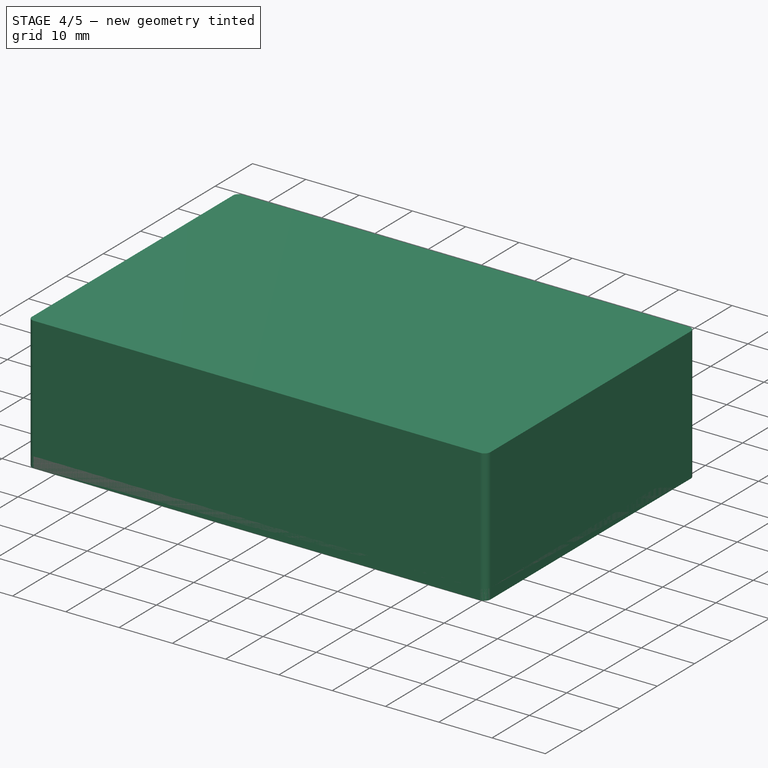
[diagram: stage 4 of 5 — iso view after this stage's code; geometry added in this stage tinted green]
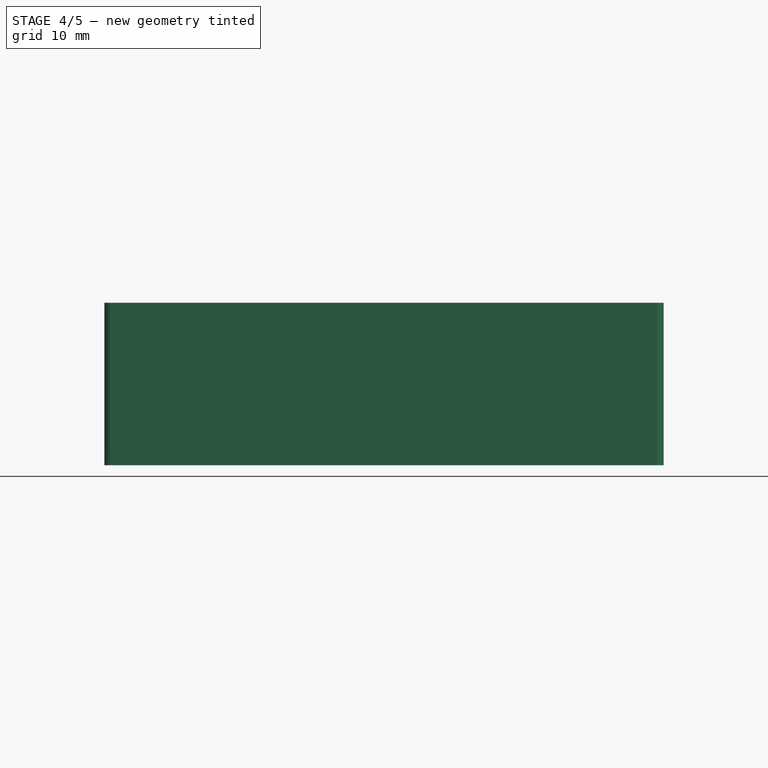
[diagram: stage 4 of 5 — front view after this stage's code; geometry added in this stage tinted green]
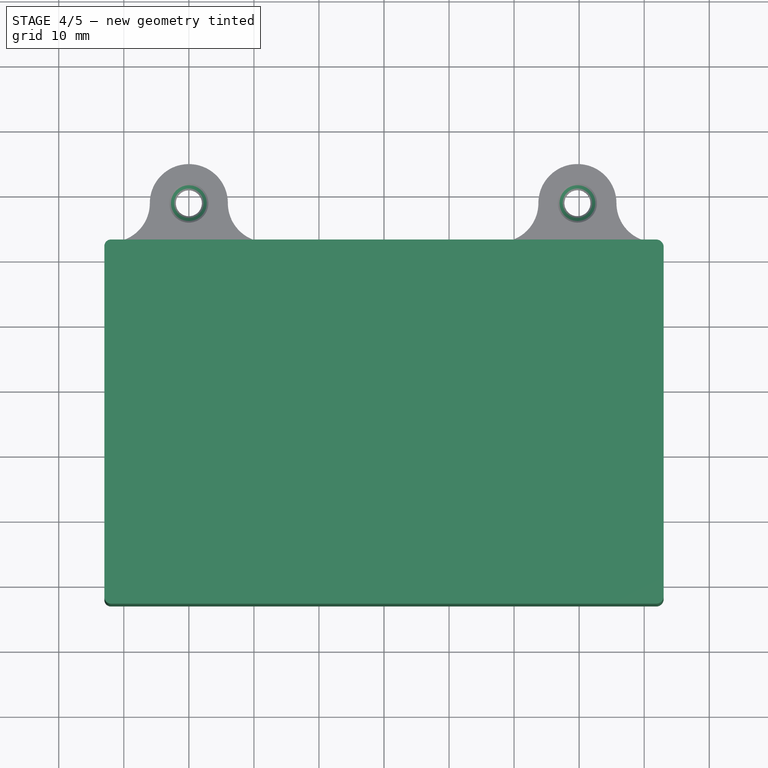
[diagram: stage 4 of 5 — top view after this stage's code; geometry added in this stage tinted green]
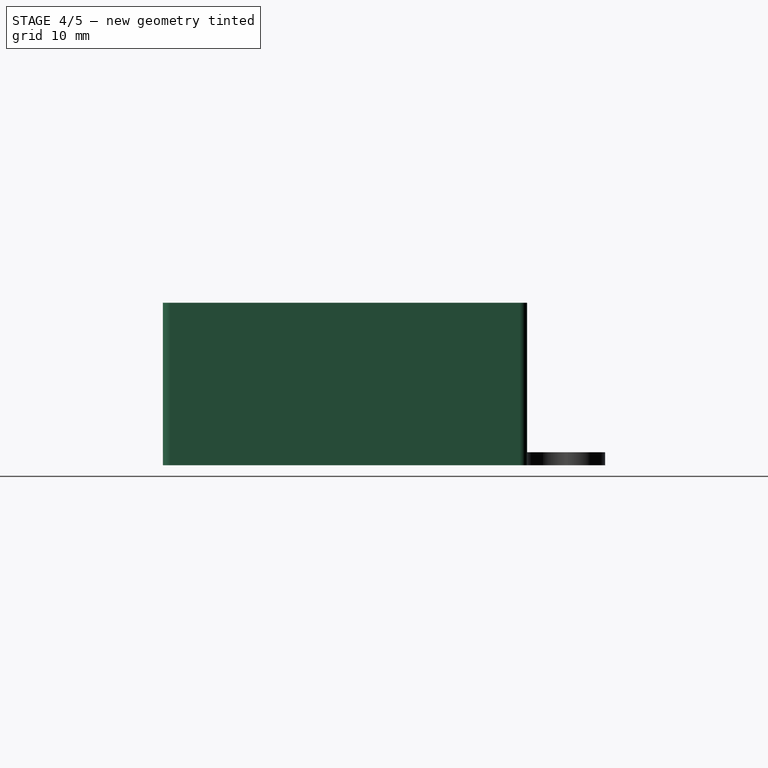
[diagram: stage 4 of 5 — right view after this stage's code; geometry added in this stage tinted green]
FEATURE [Sketcher::SketchObject] Sketch005
  ArcFitTolerance = 1e-06
  AttachmentSupport = -> [XY_Plane043]
  FullyConstrained = false
  MakeInternals = false
  MapMode = 5
  sketch-geometry (60):
    g0: LineSegment [constr] StartX=-1 StartY=1 StartZ=0 EndX=-1 EndY=-51 EndZ=0
    g1: LineSegment [constr] StartX=-1 StartY=-51 StartZ=0 EndX=81 EndY=-51 EndZ=0
    g2: LineSegment [constr] StartX=81 StartY=-51 StartZ=0 EndX=81 EndY=1 EndZ=0
    g3: LineSegment [constr] StartX=81 StartY=1 StartZ=0 EndX=-1 EndY=1 EndZ=0
    g4: LineSegment [constr] StartX=0.0127 StartY=-0.0127 StartZ=0 EndX=0.0127 EndY=-49.9873 EndZ=0
    g5: LineSegment [constr] StartX=0.0127 StartY=-49.9873 StartZ=0 EndX=79.9873 EndY=-49.9873 EndZ=0
    g6: LineSegment [constr] StartX=79.9873 StartY=-49.9873 StartZ=0 EndX=79.9873 EndY=-0.0127 EndZ=0
    g7: LineSegment [constr] StartX=79.9873 StartY=-0.0127 StartZ=0 EndX=0.0127 EndY=-0.0127 EndZ=0
    g8: LineSegment [constr] StartX=-2 StartY=2 StartZ=0 EndX=-2 EndY=-52 EndZ=0
    g9: LineSegment [constr] StartX=-2 StartY=-52 StartZ=0 EndX=82 EndY=-52 EndZ=0
    g10: LineSegment [constr] StartX=82 StartY=-52 StartZ=0 EndX=82 EndY=2 EndZ=0
    g11: LineSegment [constr] StartX=82 StartY=2 StartZ=0 EndX=-2 EndY=2 EndZ=0
    g12: GeomPoint X=2.54 Y=-2.54 Z=0
    g13: GeomPoint X=77.4702 Y=-2.54 Z=0
    g14: GeomPoint X=76.4542 Y=-2.54 Z=0
    g15: GeomPoint X=3.55601 Y=-2.54 Z=0
    g16: GeomPoint X=77.4702 Y=-47.7521 Z=0
    g17: GeomPoint X=76.4542 Y=-47.7521 Z=0
    g18: GeomPoint X=2.54 Y=-47.4981 Z=0
    g19: GeomPoint X=3.55601 Y=-47.4981 Z=0
    g20: GeomPoint X=0.277038 Y=-35.5161 Z=0
    g21: GeomPoint X=0.277038 Y=-44.3161 Z=0
    g22: GeomPoint X=14.277 Y=-44.3161 Z=0
    g23: GeomPoint X=14.377 Y=-35.5161 Z=0
    g24: GeomPoint X=18.161 Y=-42.2501 Z=0
    g25: GeomPoint X=18.161 Y=-48.0501 Z=0
    g26: GeomPoint X=28.321 Y=-48.0501 Z=0
    g27: GeomPoint X=28.321 Y=-42.2501 Z=0
    g28: GeomPoint X=30.8611 Y=-42.2501 Z=0
    g29: GeomPoint X=30.8611 Y=-48.0501 Z=0
    g30: GeomPoint X=41.0211 Y=-48.0501 Z=0
    g31: GeomPoint X=41.0211 Y=-42.2501 Z=0
    g32: GeomPoint X=43.5611 Y=-42.2501 Z=0
    g33: GeomPoint X=43.5611 Y=-48.0501 Z=0
    g34: GeomPoint X=53.7211 Y=-48.0501 Z=0
    g35: GeomPoint X=53.7211 Y=-42.2501 Z=0
    g36: GeomPoint X=56.2611 Y=-42.2501 Z=0
    g37: GeomPoint X=56.2611 Y=-48.0501 Z=0
    g38: GeomPoint X=66.4211 Y=-48.0501 Z=0
    g39: GeomPoint X=66.4211 Y=-42.2501 Z=0
    g40: LineSegment StartX=-3 StartY=1.98579 StartZ=0 EndX=-3 EndY=-51.9696 EndZ=0
    g41: LineSegment StartX=-1.96959 StartY=-53 StartZ=0 EndX=81.8525 EndY=-53 EndZ=0
    g42: LineSegment StartX=83 StartY=-51.8525 StartZ=0 EndX=83 EndY=1.83683 EndZ=0
    g43: LineSegment StartX=81.8368 StartY=3 StartZ=0 EndX=-1.98579 EndY=3 EndZ=0
    g44: GeomPoint X=-2 Y=2 Z=0
    g45: GeomPoint X=-1 Y=1 Z=0
    g46: GeomPoint X=82 Y=2 Z=0
    g47: GeomPoint X=81 Y=1 Z=0
    g48: GeomPoint X=81 Y=-51 Z=0
    g49: GeomPoint X=82 Y=-52 Z=0
    g50: GeomPoint X=-1 Y=-51 Z=0
    g51: GeomPoint X=-2 Y=-52 Z=0
    g52: ArcOfCircle CenterX=-1.98579 CenterY=1.98579 CenterZ=0 NormalX=0 NormalY=0 NormalZ=1 AngleXU=0 Radius=1.01421 StartAngle=1.5708 EndAngle=3.14159
    g53: GeomPoint [constr] X=-3 Y=3 Z=0
    g54: ArcOfCircle CenterX=81.8368 CenterY=1.83683 CenterZ=0 NormalX=0 NormalY=0 NormalZ=1 AngleXU=0 Radius=1.16317 StartAngle=0 EndAngle=1.5708
    g55: GeomPoint [constr] X=83 Y=3 Z=0
    g56: ArcOfCircle CenterX=81.8525 CenterY=-51.8525 CenterZ=0 NormalX=0 NormalY=0 NormalZ=1 AngleXU=0 Radius=1.14754 StartAngle=4.71239 EndAngle=6.28319
    g57: GeomPoint [constr] X=83 Y=-53 Z=0
    g58: ArcOfCircle CenterX=-1.96959 CenterY=-51.9696 CenterZ=0 NormalX=0 NormalY=0 NormalZ=1 AngleXU=0 Radius=1.03041 StartAngle=3.14159 EndAngle=4.71239
    g59: GeomPoint [constr] X=-3 Y=-53 Z=0
  constraints (64):
    c: Coincident(g0,g1)
    c: Coincident(g1,g2)
    c: Coincident(g2,g3)
    c: Coincident(g3,g0)
    c: Vertical(g0)
    c: Vertical(g2)
    c: Horizontal(g1)
    c: Horizontal(g3)
    c: DistanceX(g1,g1) = 82
    c: DistanceY(g2,g2) = 52
    c: Distance(g3,g-1) = 1
    c: Distance(g-2,g0) = 1
    c: Coincident(g4,g5)
    c: Coincident(g5,g6)
    c: Coincident(g6,g7)
    c: Coincident(g7,g4)
    c: Vertical(g4)
    c: Vertical(g6)
    c: Horizontal(g5)
    c: Horizontal(g7)
    c: Coincident(g8,g9)
    c: Coincident(g9,g10)
    c: Coincident(g10,g11)
    c: Coincident(g11,g8)
    c: Vertical(g8)
    c: Vertical(g10)
    c: Horizontal(g9)
    c: Horizontal(g11)
    c: Distance(g10,g2) = 1
    c: Distance(g9,g1) = 1
    c: DistanceX(g11,g11) = 84
    c: DistanceY(g8,g8) = 54
    c: Vertical(g40)
    c: Vertical(g42)
    c: Horizontal(g41)
    c: Horizontal(g43)
    c: Distance(g57,g10) = 1
    c: Distance(g55,g11) = 1
    c: DistanceY(g59,g53) = 56
    c: DistanceX(g59,g57) = 86
    c: Coincident(g44,g8)
    c: Coincident(g45,g0)
    c: Coincident(g46,g10)
    c: Coincident(g47,g2)
    c: Coincident(g48,g1)
    c: Coincident(g49,g9)
    c: Coincident(g50,g0)
    c: Coincident(g51,g8)
    c: PointOnObject(g53,g40)
    c: PointOnObject(g53,g43)
    c: Tangent(g40,g52) = -1.5708
    c: Tangent(g43,g52) = -1.5708
    c: PointOnObject(g55,g42)
    c: PointOnObject(g55,g43)
    c: Tangent(g42,g54) = -1.5708
    c: Tangent(g43,g54) = -1.5708
    c: PointOnObject(g57,g41)
    c: PointOnObject(g57,g42)
    c: Tangent(g41,g56) = -1.5708
    c: Tangent(g42,g56) = -1.5708
    c: PointOnObject(g59,g40)
    c: PointOnObject(g59,g41)
    c: Tangent(g40,g58) = -1.5708
    c: Tangent(g41,g58) = -1.5708
FEATURE [PartDesign::Pad] Pad005
  Direction = (0,0,1)
  Length = 25
  Length2 = 10
  Profile = -> Sketch005
  ReferenceAxis = -> Sketch005 [N_Axis]
  Refine = true
  Suppressed = false
  Type = 0
FEATURE [Sketcher::SketchObject] Sketch006
  ArcFitTolerance = 1e-06
  AttachmentSupport = -> [Pad005]
  ExternalGeometry = -> [Pad005]
  FullyConstrained = true
  MakeInternals = false
  MapMode = 5
  Placement = pos=(0,0,0) rot=(1,0,0;3.14159rad)
  sketch-geometry (4):
    g0: LineSegment StartX=-1 StartY=51 StartZ=0 EndX=-1 EndY=-1 EndZ=0
    g1: LineSegment StartX=-1 StartY=-1 StartZ=0 EndX=81 EndY=-1 EndZ=0
    g2: LineSegment StartX=81 StartY=-1 StartZ=0 EndX=81 EndY=51 EndZ=0
    g3: LineSegment StartX=81 StartY=51 StartZ=0 EndX=-1 EndY=51 EndZ=0
  constraints (12):
    c: Coincident(g0,g1)
    c: Coincident(g1,g2)
    c: Coincident(g2,g3)
    c: Coincident(g3,g0)
    c: Vertical(g0)
    c: Vertical(g2)
    c: Horizontal(g1)
    c: Horizontal(g3)
    c: Distance(g-3,g0) = 2
    c: Distance(g-5,g3) = 2
    c: Distance(g-4,g2) = 2
    c: Distance(g-6,g1) = 2
FEATURE [PartDesign::Pocket] Pocket
  BaseFeature = -> Pad005
  Direction = (0,0,1)
  Length = 23
  Length2 = 5
  Profile = -> Sketch006
  ReferenceAxis = -> Sketch006 [N_Axis]
  Refine = true
  Suppressed = false
  Type = 0
FEATURE [Sketcher::SketchObject] Sketch007
  ArcFitTolerance = 1e-06
  AttachmentSupport = -> [Pocket]
  ExternalGeometry = -> [Pocket]
  FullyConstrained = true
  MakeInternals = false
  MapMode = 5
  Placement = pos=(0,0,0) rot=(1,0,0;3.14159rad)
  sketch-geometry (4):
    g0: LineSegment StartX=-2 StartY=52 StartZ=0 EndX=-2 EndY=-2 EndZ=0
    g1: LineSegment StartX=-2 StartY=-2 StartZ=0 EndX=82 EndY=-2 EndZ=0
    g2: LineSegment StartX=82 StartY=-2 StartZ=0 EndX=82 EndY=52 EndZ=0
    g3: LineSegment StartX=82 StartY=52 StartZ=0 EndX=-2 EndY=52 EndZ=0
  constraints (12):
    c: Coincident(g0,g1)
    c: Coincident(g1,g2)
    c: Coincident(g2,g3)
    c: Coincident(g3,g0)
    c: Vertical(g0)
    c: Vertical(g2)
    c: Horizontal(g1)
    c: Horizontal(g3)
    c: Distance(g3,g-6) = 1
    c: Distance(g0,g-5) = 1
    c: Distance(g2,g-3) = 1
    c: Distance(g1,g-4) = 1
FEATURE [PartDesign::Pocket] Pocket001
  BaseFeature = -> Pocket
  Direction = (0,0,1)
  Length = 7
  Length2 = 5
  Profile = -> Sketch007
  ReferenceAxis = -> Sketch007 [N_Axis]
  Refine = true
  Suppressed = false
  Type = 0
FEATURE [Sketcher::SketchObject] Sketch008
  ArcFitTolerance = 1e-06
  AttachmentSupport = -> [Pocket001]
  FullyConstrained = false
  MakeInternals = false
  MapMode = 5
  Placement = pos=(-3,0,0) rot=(0.57735,-0.57735,-0.57735;2.0944rad)
  sketch-geometry (8):
    g0: LineSegment StartX=35.3881 StartY=0 StartZ=0 EndX=44.4418 EndY=0 EndZ=0
    g1: LineSegment StartX=44.4418 StartY=0 StartZ=0 EndX=44.4418 EndY=17.4004 EndZ=0
    g2: LineSegment StartX=44.3163 StartY=17.5259 StartZ=0 EndX=35.5132 EndY=17.5259 EndZ=0
    g3: LineSegment StartX=35.3881 StartY=17.4008 StartZ=0 EndX=35.3881 EndY=0 EndZ=0
    g4: ArcOfCircle CenterX=35.5132 CenterY=17.4008 CenterZ=0 NormalX=0 NormalY=0 NormalZ=1 AngleXU=0 Radius=0.125081 StartAngle=1.5708 EndAngle=3.14159
    g5: GeomPoint [constr] X=35.3881 Y=17.5259 Z=0
    g6: ArcOfCircle CenterX=44.3163 CenterY=17.4004 CenterZ=0 NormalX=0 NormalY=0 NormalZ=1 AngleXU=0 Radius=0.125527 StartAngle=0 EndAngle=1.5708
    g7: GeomPoint [constr] X=44.4418 Y=17.5259 Z=0
  constraints (15):
    c: Coincident(g0,g1)
    c: Coincident(g3,g0)
    c: Horizontal(g0)
    c: Horizontal(g2)
    c: Vertical(g1)
    c: Vertical(g3)
    c: PointOnObject(g0,g-1)
    c: PointOnObject(g5,g2)
    c: PointOnObject(g5,g3)
    c: Tangent(g2,g4) = -1.5708
    c: Tangent(g3,g4) = -1.5708
    c: PointOnObject(g7,g2)
    c: PointOnObject(g7,g1)
    c: Tangent(g2,g6) = -1.5708
    c: Tangent(g1,g6) = -1.5708
FEATURE [PartDesign::Pocket] Pocket002
  BaseFeature = -> Pocket001
  Direction = (1,0,0)
  Length = 5
  Length2 = 5
  Profile = -> Sketch008
  ReferenceAxis = -> Sketch008 [N_Axis]
  Refine = true
  Suppressed = false
  Type = 0
FEATURE [PartDesign::Chamfer] Chamfer
  Angle = 45
  Base = -> Pad014 [Edge55,Edge54]
  BaseFeature = -> Pad014
  ChamferType = 0
  FlipDirection = false
  Refine = true
  Size = 1
  Size2 = 1
  SupportTransform = false
  Suppressed = false
  UseAllEdges = false
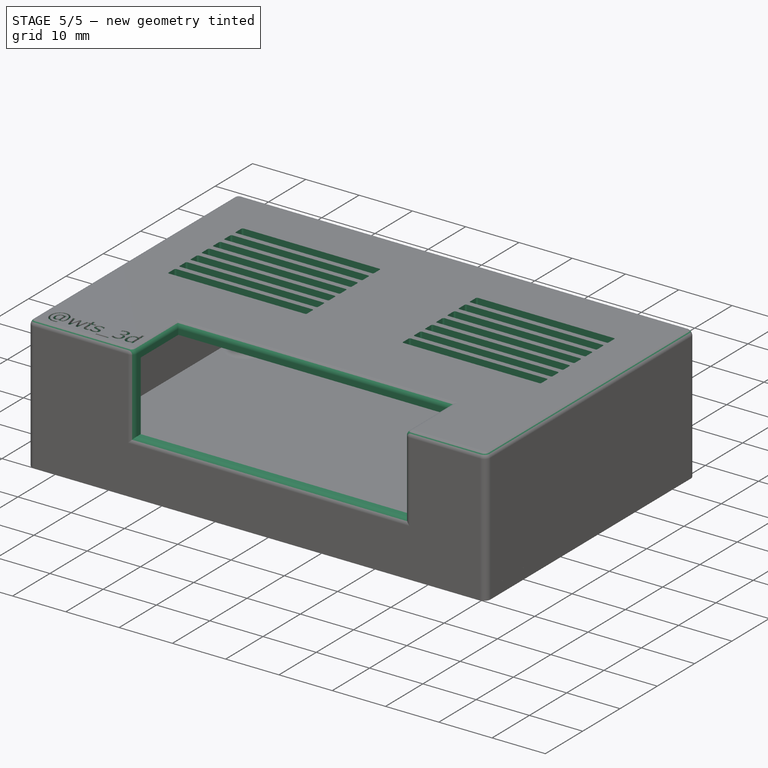
[diagram: stage 5 of 5 — iso view after this stage's code; geometry added in this stage tinted green]
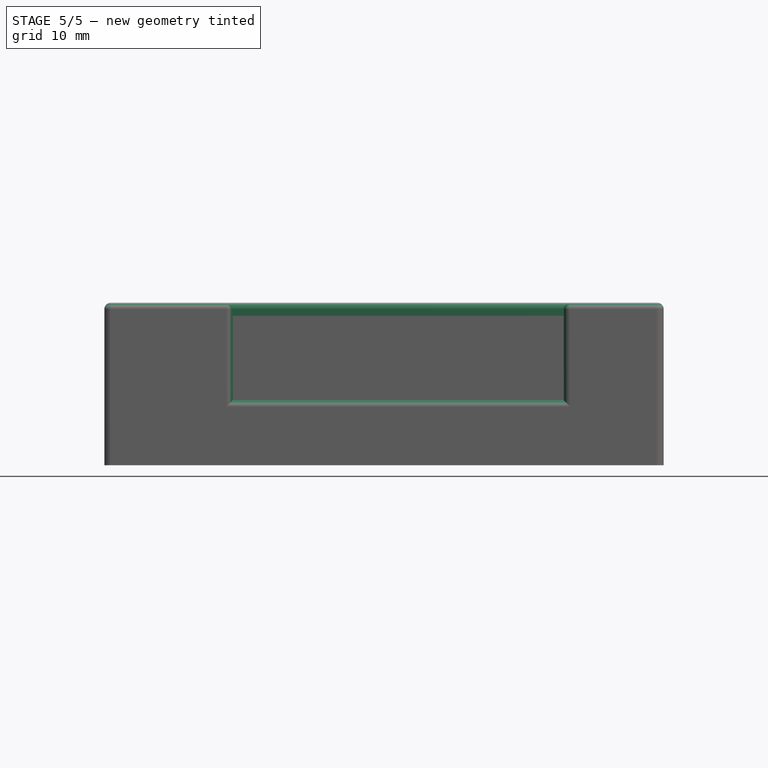
[diagram: stage 5 of 5 — front view after this stage's code; geometry added in this stage tinted green]
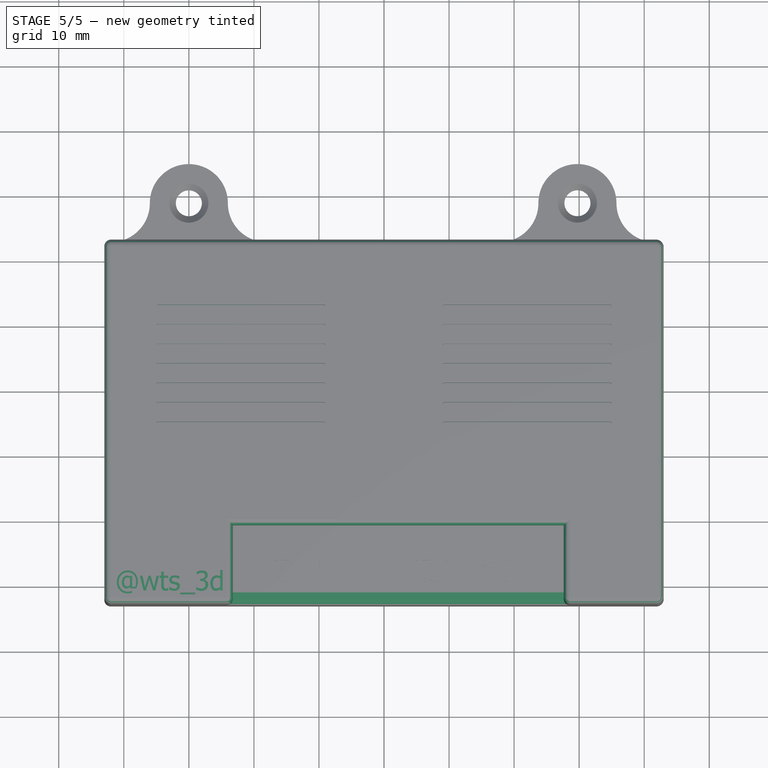
[diagram: stage 5 of 5 — top view after this stage's code; geometry added in this stage tinted green]
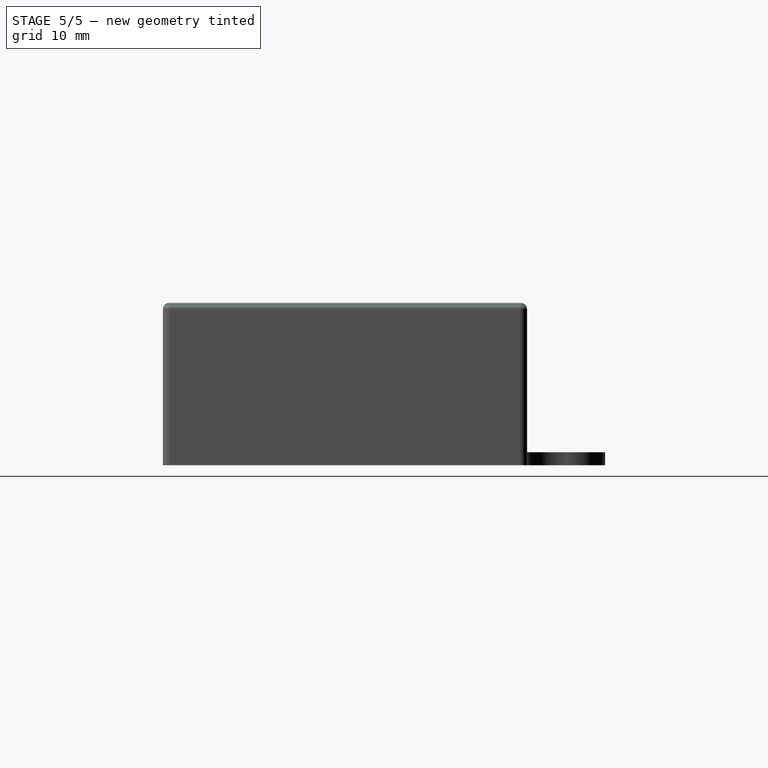
[diagram: stage 5 of 5 — right view after this stage's code; geometry added in this stage tinted green]
FEATURE [Sketcher::SketchObject] Sketch009
  ArcFitTolerance = 1e-06
  AttachmentSupport = -> [Pocket002]
  FullyConstrained = false
  MakeInternals = false
  MapMode = 5
  Placement = pos=(0,0,25) rot=(0,0,1;0rad)
  sketch-geometry (4):
    g0: LineSegment StartX=16.7477 StartY=-40.9245 StartZ=0 EndX=16.7477 EndY=-54.7129 EndZ=0
    g1: LineSegment StartX=16.7477 StartY=-54.7129 StartZ=0 EndX=67.6368 EndY=-54.7129 EndZ=0
    g2: LineSegment StartX=67.6368 StartY=-54.7129 StartZ=0 EndX=67.6368 EndY=-40.9245 EndZ=0
    g3: LineSegment StartX=67.6368 StartY=-40.9245 StartZ=0 EndX=16.7477 EndY=-40.9245 EndZ=0
  constraints (8):
    c: Coincident(g0,g1)
    c: Coincident(g1,g2)
    c: Coincident(g2,g3)
    c: Coincident(g3,g0)
    c: Vertical(g0)
    c: Vertical(g2)
    c: Horizontal(g1)
    c: Horizontal(g3)
FEATURE [PartDesign::Pocket] Pocket003
  BaseFeature = -> Pocket002
  Direction = (0,0,-1)
  Length = 15
  Length2 = 5
  Profile = -> Sketch009
  ReferenceAxis = -> Sketch009 [N_Axis]
  Refine = true
  Suppressed = false
  Type = 0
FEATURE [PartDesign::Fillet] Fillet
  Base = -> Pocket003 [Edge9,Edge41,Edge43,Edge45,Edge49,Face9,Edge48,Edge47,Edge46,Edge55,Edge57,Edge56]
  BaseFeature = -> Pocket003
  Radius = 1
  Refine = true
  SupportTransform = false
  Suppressed = false
  UseAllEdges = false
FEATURE [Sketcher::SketchObject] Sketch010
  ArcFitTolerance = 1e-06
  AttachmentOffset = pos=(0,-2,0) rot=(0,0,1;0rad)
  AttachmentSupport = -> [Fillet]
  ExternalGeometry = -> [Fillet]
  FullyConstrained = false
  MakeInternals = false
  MapMode = 5
  Placement = pos=(0,-2,25) rot=(0,0,1;0rad)
  sketch-geometry (12):
    g0: LineSegment StartX=5 StartY=-5.28284 StartZ=0 EndX=5 EndY=-6.75716 EndZ=0
    g1: LineSegment StartX=5.24284 StartY=-7 StartZ=0 EndX=30.7572 EndY=-7 EndZ=0
    g2: LineSegment StartX=31 StartY=-6.75716 StartZ=0 EndX=31 EndY=-5.28284 EndZ=0
    g3: LineSegment StartX=30.7172 StartY=-5 StartZ=0 EndX=5.28284 EndY=-5 EndZ=0
    g4: ArcOfCircle CenterX=5.28284 CenterY=-5.28284 CenterZ=0 NormalX=0 NormalY=0 NormalZ=1 AngleXU=0 Radius=0.282843 StartAngle=1.5708 EndAngle=3.14159
    g5: GeomPoint [constr] X=5 Y=-5 Z=0
    g6: ArcOfCircle CenterX=5.24284 CenterY=-6.75716 CenterZ=0 NormalX=0 NormalY=0 NormalZ=1 AngleXU=0 Radius=0.242843 StartAngle=3.14159 EndAngle=4.71239
    g7: GeomPoint [constr] X=5 Y=-7 Z=0
    g8: ArcOfCircle CenterX=30.7172 CenterY=-5.28284 CenterZ=0 NormalX=0 NormalY=0 NormalZ=1 AngleXU=0 Radius=0.282843 StartAngle=2e-16 EndAngle=1.5708
    g9: GeomPoint [constr] X=31 Y=-5 Z=0
    g10: ArcOfCircle CenterX=30.7572 CenterY=-6.75716 CenterZ=0 NormalX=0 NormalY=0 NormalZ=1 AngleXU=0 Radius=0.242843 StartAngle=4.71239 EndAngle=6.28319
    g11: GeomPoint [constr] X=31 Y=-7 Z=0
  constraints (20):
    c: Vertical(g0)
    c: Vertical(g2)
    c: Horizontal(g1)
    c: Horizontal(g3)
    c: PointOnObject(g5,g0)
    c: PointOnObject(g5,g3)
    c: Tangent(g0,g4) = -1.5708
    c: Tangent(g3,g4) = -1.5708
    c: PointOnObject(g7,g0)
    c: PointOnObject(g7,g1)
    c: Tangent(g0,g6) = -1.5708
    c: Tangent(g1,g6) = -1.5708
    c: PointOnObject(g9,g2)
    c: PointOnObject(g9,g3)
    c: Tangent(g2,g8) = -1.5708
    c: Tangent(g3,g8) = -1.5708
    c: PointOnObject(g11,g1)
    c: PointOnObject(g11,g2)
    c: Tangent(g1,g10) = -1.5708
    c: Tangent(g2,g10) = -1.5708
FEATURE [PartDesign::Pocket] Pocket004
  BaseFeature = -> Fillet
  Direction = (0,0,-1)
  Length = 5
  Length2 = 5
  Profile = -> Sketch010
  ReferenceAxis = -> Sketch010 [N_Axis]
  Refine = true
  Suppressed = false
  Type = 0
FEATURE [PartDesign::LinearPattern] LinearPattern
  Direction = -> Y_Axis043
  Length = 18
  Mode = 1
  Occurrences = 7
  Offset = 3
  Refine = true
  Reversed = true
  Suppressed = false
  TransformMode = 0
FEATURE [PartDesign::LinearPattern] LinearPattern001
  Direction = -> X_Axis043
  Length = 44
  Mode = 1
  Occurrences = 2
  Offset = 44
  Refine = true
  Suppressed = false
  TransformMode = 0
FEATURE [PartDesign::MultiTransform] MultiTransform
  BaseFeature = -> Pocket004
  Originals = -> [Pocket004]
  Refine = true
  Suppressed = false
  TransformMode = 0
  Transformations = -> [LinearPattern,LinearPattern001]
FEATURE [Part::Part2DObjectPython] ShapeString001  # Draft 2D object (typed FeaturePython)
  FontFile = <userpath>/3d-print/fonts/tahoma.ttf
  Fuse = false
  Justification = 6
  JustificationReference = 0
  KeepLeftMargin = false
  MakeFace = true
  ObliqueAngle = 0
  Placement = pos=(-1.08,-50.96,25) rot=(0,0,1;0rad)
  ScaleToSize = true
  Size = 3
  String = @wts_3d
  Tracking = 0
FEATURE [PartDesign::Pocket] Pocket005
  BaseFeature = -> MultiTransform
  Direction = (0,0,-1)
  Length = 0.6
  Length2 = 5
  Profile = -> ShapeString001
  ReferenceAxis = -> ShapeString001 [N_Axis]
  Refine = true
  Suppressed = false
  Type = 0
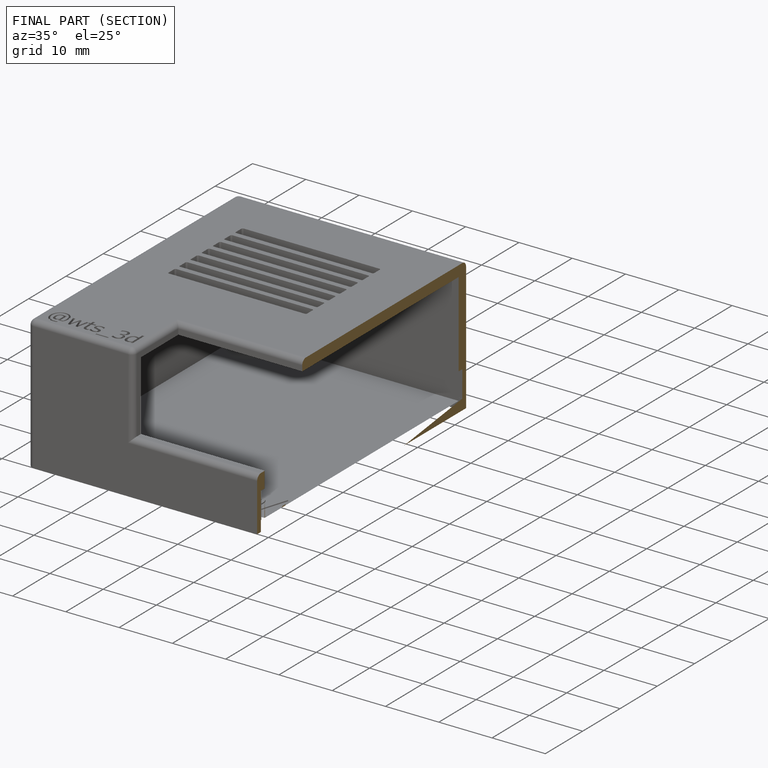
[diagram: finished part — half-section view (interior)]
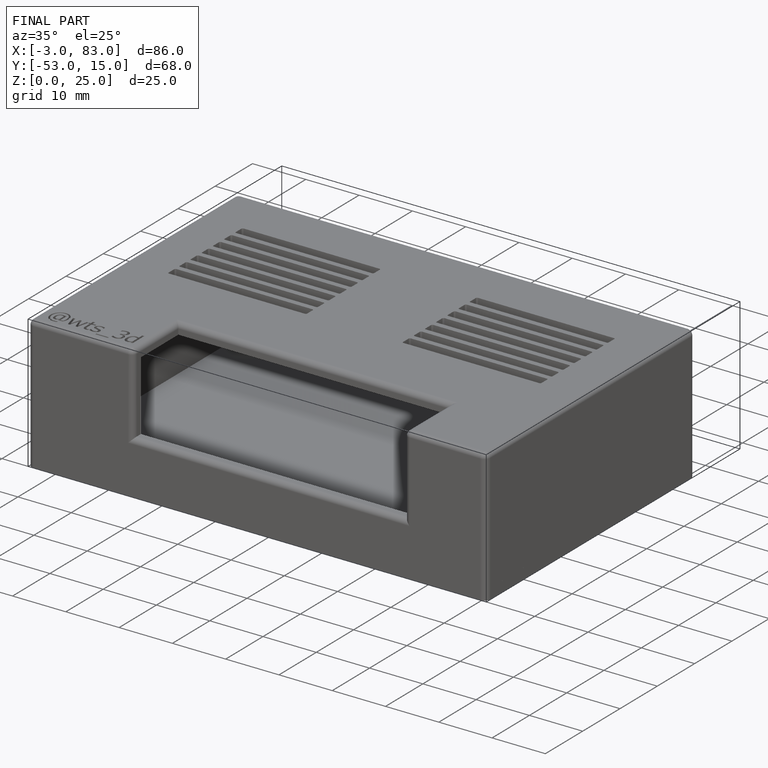
[diagram: finished part — iso view with bounding-box wireframe]
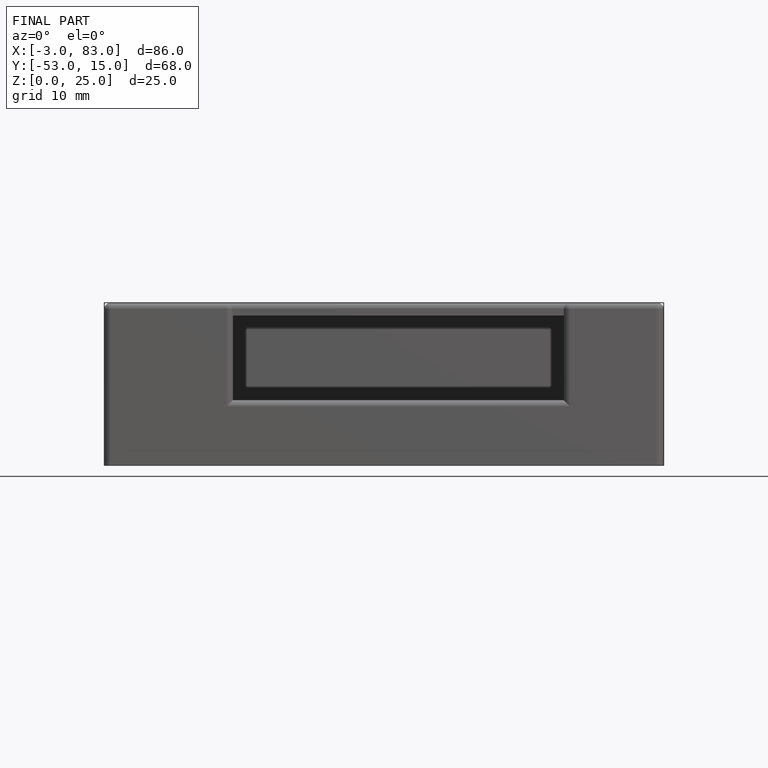
[diagram: finished part — front view with bounding-box wireframe]
